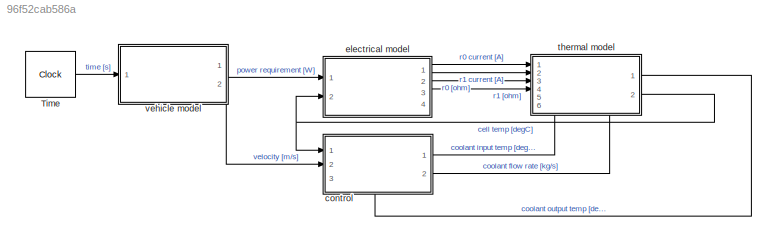
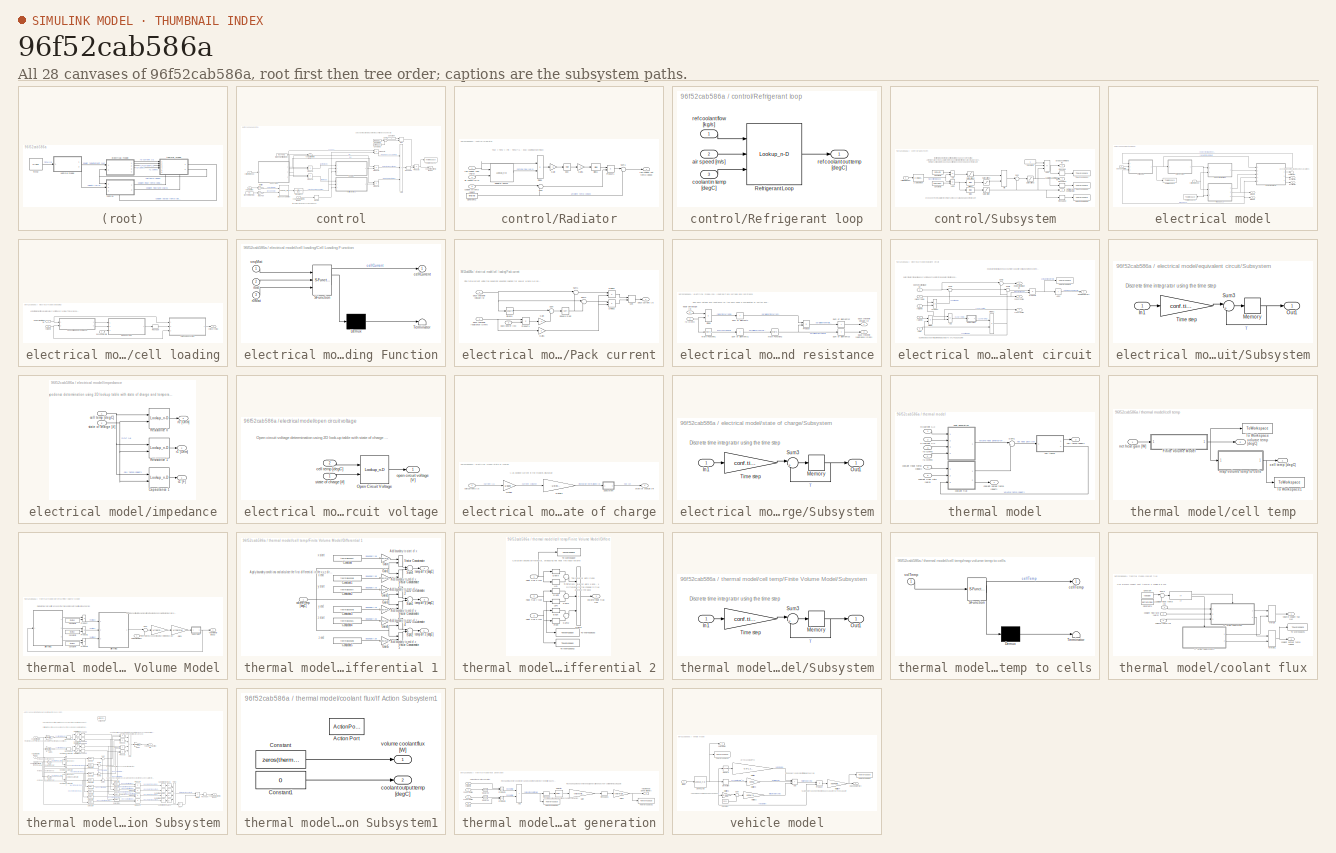
[diagram: thumbnail index - all 28 canvases of the model, root first then tree order]
MODEL slx_96f52cab586a
KIND model
CONFIG AbsTol = auto
CONFIG EnableMultiTasking = off
CONFIG FixedStep = 1
CONFIG InitFcn = full_model_init
CONFIG MaxStep = auto
CONFIG MinStep = auto
CONFIG RelTol = 1e-3
CONFIG SampleTimeConstraint = Unconstrained
CONFIG SolverName = VariableStepAuto
CONFIG StartTime = 0.0
CONFIG StopTime = stopTime
BLOCK [Clock] Time
  DisplayTime = on
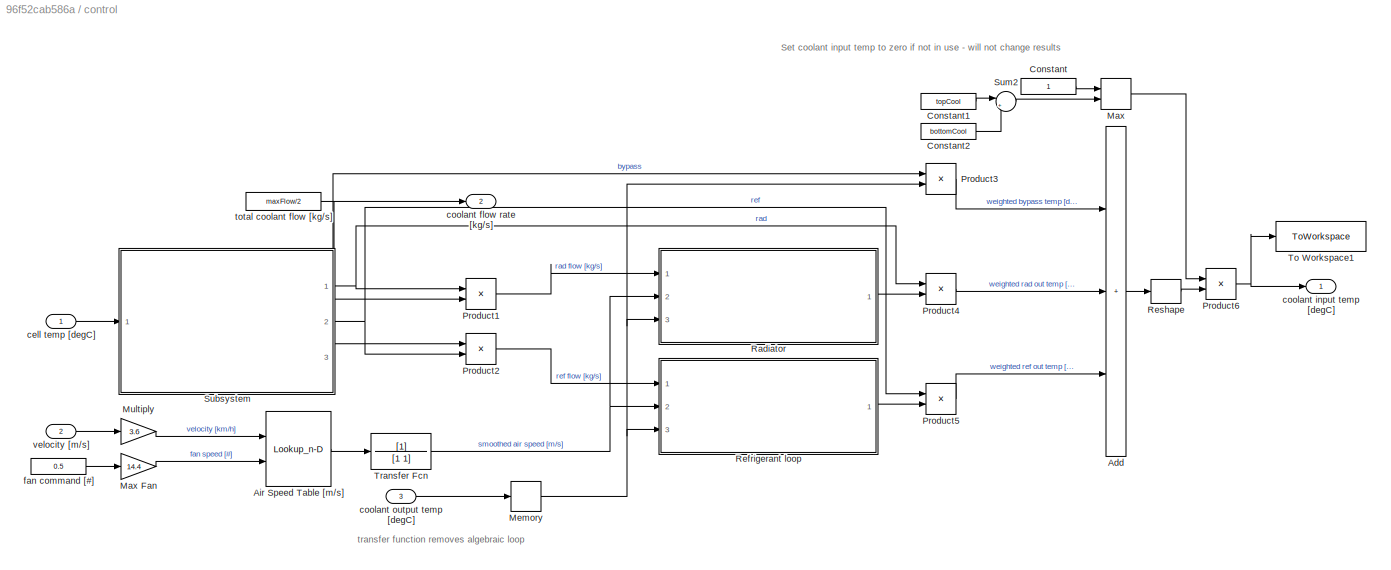
BLOCK [SubSystem] control
  PortSchema = {"entries":[{"content":{"sides":[{"content":{"connectorIds":["In1","In2"]},"type":"ConnectorPlacement.EquallySpacedRectSide","uuid":"22f80eaa-bb46-4281-9ec1-3970c1bac2a3"},{"content":{"connectorIds":["Out1","Out2"],"side":"RIGHT"},"type":"ConnectorPlacement.EquallySpacedRectSide","uuid":"e76f71c5-d41f-442d-b655-b3bc32395443"},{"content":{"connectorIds":[],"side":"TOP"},"type":"ConnectorPlacement.E...<+402ch>
  Ports = [3, 2]
  RequestExecContextInheritance = off
  ShowPortLabels = SignalName
BLOCK [Sum] control/Add
  IconShape = rectangular
  Inputs = +++
  Ports = [3, 1]
BLOCK [Lookup_n-D] control/Air Speed Table [m//s]
  BeginIndexSearchUsingPreviousIndexResult = on
  BreakpointsForDimension1 = [0 40 90 110 150 180 198]
  BreakpointsForDimension2 = [0 14.4]
  IndexSearchMethod = Linear search
  InputPortMap = u0,u1
  InternalRulePriority = Speed
  Ports = [2, 1]
  RndMeth = Simplest
  Table = [0 0.8 2.2 2.7 3.6 4.1 4.6; 1.5 2.3 3.2 3.5 4.3 4.8 5.1]'
BLOCK [Constant] control/Constant
BLOCK [Constant] control/Constant1
  Value = topCool
BLOCK [Constant] control/Constant2
  Value = bottomCool
BLOCK [MinMax] control/Max
  Inputs = 2
  Ports = [2, 1]
BLOCK [Gain] control/Max Fan
  Gain = 14.4
BLOCK [Memory] control/Memory
  InitialCondition = tempAmb + conf.bound.initBias
BLOCK [Gain] control/Multiply
  Gain = 3.6
BLOCK [Product] control/Product1
  Ports = [2, 1]
BLOCK [Product] control/Product2
  Ports = [2, 1]
BLOCK [Product] control/Product3
  Ports = [2, 1]
BLOCK [Product] control/Product4
  Ports = [2, 1]
BLOCK [Product] control/Product5
  Ports = [2, 1]
BLOCK [Product] control/Product6
  Ports = [2, 1]
BLOCK [SubSystem] control/Radiator
  Ports = [3, 1]
  RequestExecContextInheritance = off
BLOCK [Bias] control/Radiator/Bias1
  Bias = 1
  SaturateOnIntegerOverflow = off
BLOCK [Constant] control/Radiator/Constant2
  Value = tempAmb
BLOCK [Product] control/Radiator/Divide
  Inputs = */
  Ports = [2, 1]
BLOCK [Math] control/Radiator/Exp
  Ports = [1, 1]
BLOCK [Gain] control/Radiator/Gain
  Gain = -1
BLOCK [Gain] control/Radiator/Gain1
  Gain = -1
BLOCK [Product] control/Radiator/Product1
  Ports = [2, 1]
BLOCK [Lookup_n-D] control/Radiator/Radiator lookup
  BreakpointsForDimension1 = radCoolFlowBreakPoints
  BreakpointsForDimension2 = radAirVelBreakPoints
  BreakpointsForDimension3 = refCoolInTempBreakPoints
  InputPortMap = u0,u1
  InternalRulePriority = Speed
  Ports = [2, 1]
  RndMeth = Simplest
  Table = radNomFlowMatrix
BLOCK [Sum] control/Radiator/Sum
  Inputs = |+-
  Ports = [2, 1]
BLOCK [Sum] control/Radiator/Sum1
  Inputs = |++
  Ports = [2, 1]
BLOCK [Inport] control/Radiator/air speed [m//s]
  Port = 2
BLOCK [Inport] control/Radiator/coolant in temp [degC]
  Port = 3
BLOCK [Inport] control/Radiator/rad coolant flow [kg//s]
BLOCK [Outport] control/Radiator/rad coolant out temp [degC]
BLOCK [SubSystem] control/Refrigerant loop
  Ports = [3, 1]
  RequestExecContextInheritance = off
BLOCK [Lookup_n-D] control/Refrigerant loop/Refrigerant Loop
  BreakpointsForDimension1 = refCoolFlowBreakPoints
  BreakpointsForDimension2 = refAirVelBreakPoints
  BreakpointsForDimension3 = refCoolInTempBreakPoints
  InputPortMap = u0,u1,u2
  InternalRulePriority = Speed
  NumberOfTableDimensions = 3
  Ports = [3, 1]
  RndMeth = Simplest
  Table = refTempOutMatrix
BLOCK [Inport] control/Refrigerant loop/air speed [m//s]
  Port = 2
BLOCK [Inport] control/Refrigerant loop/coolant in temp [degC]
  Port = 3
BLOCK [Inport] control/Refrigerant loop/ref coolant flow [kg//s]
BLOCK [Outport] control/Refrigerant loop/ref coolant out temp [degC]
BLOCK [Reshape] control/Reshape
  OutputDimensionality = Customize
  OutputDimensions = 1
  Ports = [1, 1]
BLOCK [SubSystem] control/Subsystem
  PortSchema = {"entries":[{"content":{"sides":[{"content":{"connectorIds":["In1"]},"type":"ConnectorPlacement.EquallySpacedRectSide","uuid":"39caf9d2-37e9-4ddb-8f89-28cdec2ac0f1"},{"content":{"connectorIds":["Out1","Out2"],"side":"RIGHT"},"type":"ConnectorPlacement.EquallySpacedRectSide","uuid":"3cbc02da-b039-4e1d-b42e-efc08ec78021"},{"content":{"connectorIds":["Out3"],"side":"TOP"},"type":"ConnectorPlacement.E...<+253ch>
  Ports = [1, 3]
  RequestExecContextInheritance = off
BLOCK [Reference] control/Subsystem/2-D Maximum  REF=visionstatistics/2-D Maximum
  Ports = [1, 1]
  SourceBlock = visionstatistics/2-D Maximum
  SourceProductBaseCode = VP
  SourceType = 2-D Maximum
  UserDataPersistent = on
BLOCK [Sum] control/Subsystem/Add
  IconShape = rectangular
  Inputs = -+
  Ports = [2, 1]
BLOCK [Sum] control/Subsystem/Add1
  IconShape = rectangular
  Inputs = +-
  Ports = [2, 1]
BLOCK [Sum] control/Subsystem/Add2
  IconShape = rectangular
  Inputs = +--
  Ports = [3, 1]
BLOCK [Bias] control/Subsystem/Bias
  Bias = -4.5
  SaturateOnIntegerOverflow = off
BLOCK [Bias] control/Subsystem/Bias1
  Bias = +0.5
  SaturateOnIntegerOverflow = off
BLOCK [Constant] control/Subsystem/Constant1
BLOCK [Constant] control/Subsystem/Constant2
  Value = tempAmb
BLOCK [Constant] control/Subsystem/Constant3
  Value = tempTarget
BLOCK [MinMax] control/Subsystem/Min
  Inputs = 2
  Ports = [2, 1]
BLOCK [Reshape] control/Subsystem/Reshape
  Ports = [1, 1]
BLOCK [Reshape] control/Subsystem/Reshape1
  Ports = [1, 1]
BLOCK [Reshape] control/Subsystem/Reshape2
  Ports = [1, 1]
BLOCK [Saturate] control/Subsystem/Saturation
  LowerLimit = 0
  UpperLimit = 1
BLOCK [Saturate] control/Subsystem/Saturation1
  LowerLimit = 0
  UpperLimit = 1
BLOCK [Saturate] control/Subsystem/Saturation2
  LowerLimit = 0
  UpperLimit = 1
BLOCK [Saturate] control/Subsystem/Saturation3
  LowerLimit = 0
  UpperLimit = 1
BLOCK [Sum] control/Subsystem/Sum
  Inputs = |+-
  Ports = [2, 1]
BLOCK [ToWorkspace] control/Subsystem/To Workspace1
  FixptAsFi = on
  MaxDataPoints = inf
  Ports = [1]
  SampleTime = conf.time.sample
  SaveFormat = Timeseries
  VariableName = bypassCmd
BLOCK [ToWorkspace] control/Subsystem/To Workspace2
  FixptAsFi = on
  MaxDataPoints = inf
  Ports = [1]
  SampleTime = conf.time.sample
  SaveFormat = Timeseries
  VariableName = radCmd
BLOCK [ToWorkspace] control/Subsystem/To Workspace3
  FixptAsFi = on
  MaxDataPoints = inf
  Ports = [1]
  SampleTime = conf.time.sample
  SaveFormat = Timeseries
  VariableName = refCmd
BLOCK [Outport] control/Subsystem/bypass command [#]
  Port = 3
BLOCK [Inport] control/Subsystem/cell temp [degC]
BLOCK [Outport] control/Subsystem/radiator command [#]
BLOCK [Outport] control/Subsystem/refrigerant command [#]
  Port = 2
BLOCK [Sum] control/Sum2
  Inputs = |++
  Ports = [2, 1]
BLOCK [ToWorkspace] control/To Workspace1
  FixptAsFi = on
  MaxDataPoints = inf
  Ports = [1]
  SampleTime = conf.time.sample
  SaveFormat = Timeseries
  VariableName = coolInTemp
BLOCK [TransferFcn] control/Transfer Fcn
  Denominator = [1 1]
BLOCK [Inport] control/cell temp [degC]
BLOCK [Outport] control/coolant flow rate [kg//s]
  Port = 2
BLOCK [Outport] control/coolant input temp [degC]
BLOCK [Inport] control/coolant output temp [degC]
  Port = 3
BLOCK [Constant] control/fan command [#]
  Value = 0.5
BLOCK [Constant] control/total coolant flow [kg//s]
  Value = maxFlow/2
BLOCK [Inport] control/velocity [m//s]
  Port = 2
BLOCK [SubSystem] electrical model
  Ports = [2, 4]
  RequestExecContextInheritance = off
BLOCK [Terminator] electrical model/Terminator
BLOCK [ToWorkspace] electrical model/To Workspace
  FixptAsFi = on
  MaxDataPoints = inf
  Ports = [1]
  SampleTime = conf.time.sample
  SaveFormat = Timeseries
  VariableName = cellCurrent
BLOCK [ToWorkspace] electrical model/To Workspace2
  FixptAsFi = on
  MaxDataPoints = inf
  Ports = [1]
  SampleTime = conf.time.sample
  SaveFormat = Timeseries
  VariableName = cellSOC
BLOCK [SubSystem] electrical model/cell loading
  Ports = [3, 1]
  RequestExecContextInheritance = off
BLOCK [SubSystem] electrical model/cell loading/Cell Loading Function
  ErrorFcn = Stateflow.Translate.translate
  PermitHierarchicalResolution = ExplicitOnly
  Ports = [3, 1]
  RequestExecContextInheritance = off
  SFBlockType = MATLAB Function
  TreatAsAtomicUnit = on
BLOCK [Demux] electrical model/cell loading/Cell Loading Function/ Demux 
  Outputs = 1
  Ports = [1, 1]
BLOCK [S-Function] electrical model/cell loading/Cell Loading Function/ SFunction 
  EnableBusSupport = on
  FunctionName = sf_sfun
  Parameters = cellsP,cellsS,elecLoadDenomInds,elecLoadTerm12Inds,elecLoadTerm1Inds,elecLoadTerm2Inds,elecLoadTerm3Inds
  PortCounts = [3 2]
  Ports = [3, 2]
  SFcnIsStateOwnerBlock = off
  SFunctionDeploymentMode = off
  Tag = Stateflow S-Function 1
BLOCK [Terminator] electrical model/cell loading/Cell Loading Function/ Terminator 
BLOCK [Outport] electrical model/cell loading/Cell Loading Function/cellCurrent
BLOCK [Inport] electrical model/cell loading/Cell Loading Function/ibat
  Port = 2
BLOCK [Inport] electrical model/cell loading/Cell Loading Function/r0Mat
  Port = 3
BLOCK [Inport] electrical model/cell loading/Cell Loading Function/veqMat
BLOCK [SubSystem] electrical model/cell loading/Pack current
  Ports = [3, 1]
  RequestExecContextInheritance = off
BLOCK [Product] electrical model/cell loading/Pack current/Divide1
  Inputs = */
  Ports = [2, 1]
BLOCK [Product] electrical model/cell loading/Pack current/Divide2
  Inputs = */
  Ports = [2, 1]
BLOCK [Gain] electrical model/cell loading/Pack current/Gain
  Gain = -4
BLOCK [Gain] electrical model/cell loading/Pack current/Gain1
  Gain = 2
BLOCK [MinMax] electrical model/cell loading/Pack current/Min
  Inputs = 2
  Ports = [2, 1]
BLOCK [Product] electrical model/cell loading/Pack current/Product1
  Ports = [2, 1]
BLOCK [Math] electrical model/cell loading/Pack current/Square
  Operator = square
  Ports = [1, 1]
BLOCK [Sqrt] electrical model/cell loading/Pack current/Square Root
BLOCK [Sum] electrical model/cell loading/Pack current/Sum
  Inputs = |++
  Ports = [2, 1]
BLOCK [Sum] electrical model/cell loading/Pack current/Sum1
  Inputs = |++
  Ports = [2, 1]
BLOCK [Sum] electrical model/cell loading/Pack current/Sum2
  Inputs = |+-
  Ports = [2, 1]
BLOCK [Outport] electrical model/cell loading/Pack current/pack current [A]
BLOCK [Inport] electrical model/cell loading/Pack current/pack power [W]
  Port = 3
BLOCK [Inport] electrical model/cell loading/Pack current/pack thevenin resistance [Ohm]
  Port = 2
BLOCK [Inport] electrical model/cell loading/Pack current/pack thevenin voltage [V]
BLOCK [SubSystem] electrical model/cell loading/Pack voltage and resistance
  Ports = [2, 2]
  RequestExecContextInheritance = off
BLOCK [Product] electrical model/cell loading/Pack voltage and resistance/Divide
  Inputs = */
  Ports = [2, 1]
BLOCK [Math] electrical model/cell loading/Pack voltage and resistance/Math Function1
  Operator = reciprocal
  Ports = [1, 1]
BLOCK [Math] electrical model/cell loading/Pack voltage and resistance/Math Function2
  Operator = reciprocal
  Ports = [1, 1]
BLOCK [Product] electrical model/cell loading/Pack voltage and resistance/Product
  Ports = [2, 1]
BLOCK [Sum] electrical model/cell loading/Pack voltage and resistance/Sum of Elements
  CollapseDim = 2
  CollapseMode = Specified dimension
  IconShape = rectangular
  Inputs = +
  Ports = [1, 1]
BLOCK [Sum] electrical model/cell loading/Pack voltage and resistance/Sum of Elements1
  CollapseDim = 2
  CollapseMode = Specified dimension
  IconShape = rectangular
  Inputs = +
  Ports = [1, 1]
BLOCK [Sum] electrical model/cell loading/Pack voltage and resistance/Sum of Elements2
  CollapseMode = Specified dimension
  IconShape = rectangular
  Inputs = +
  Ports = [1, 1]
BLOCK [Sum] electrical model/cell loading/Pack voltage and resistance/Sum of Elements3
  CollapseMode = Specified dimension
  IconShape = rectangular
  Inputs = +
  Ports = [1, 1]
BLOCK [Inport] electrical model/cell loading/Pack voltage and resistance/equiv cell voltage [V]
BLOCK [Outport] electrical model/cell loading/Pack voltage and resistance/pack thevenin resistance [Ohm]
  Port = 2
BLOCK [Outport] electrical model/cell loading/Pack voltage and resistance/pack thevenin voltage [V]
BLOCK [Inport] electrical model/cell loading/Pack voltage and resistance/r0 [Ohm]
  Port = 2
BLOCK [Reshape] electrical model/cell loading/Reshape
  OutputDimensionality = Customize
  OutputDimensions = 1
  Ports = [1, 1]
BLOCK [Outport] electrical model/cell loading/cell current [A]
BLOCK [Inport] electrical model/cell loading/equiv cell voltage [V]
BLOCK [Inport] electrical model/cell loading/pack power [W]
  Port = 2
BLOCK [Inport] electrical model/cell loading/r0 [Ohm]
  Port = 3
BLOCK [Inport] electrical model/cell temp [degC]
  Port = 2
BLOCK [SubSystem] electrical model/equivalent circuit
  Ports = [5, 4]
  RequestExecContextInheritance = off
BLOCK [Sum] electrical model/equivalent circuit/Add
  IconShape = rectangular
  Inputs = +-
  Ports = [2, 1]
BLOCK [Sum] electrical model/equivalent circuit/Add1
  IconShape = rectangular
  Inputs = +
  Ports = [1, 1]
BLOCK [Product] electrical model/equivalent circuit/Divide
  Inputs = /*
  Ports = [2, 1]
BLOCK [Product] electrical model/equivalent circuit/Divide1
  Inputs = */
  Ports = [2, 1]
BLOCK [Product] electrical model/equivalent circuit/Product
  Ports = [2, 1]
BLOCK [Product] electrical model/equivalent circuit/Product1
  Ports = [2, 1]
BLOCK [SubSystem] electrical model/equivalent circuit/Subsystem
  Ports = [1, 1]
  RequestExecContextInheritance = off
BLOCK [Inport] electrical model/equivalent circuit/Subsystem/In1
BLOCK [Memory] electrical model/equivalent circuit/Subsystem/Memory
BLOCK [Outport] electrical model/equivalent circuit/Subsystem/Out1
BLOCK [Sum] electrical model/equivalent circuit/Subsystem/Sum3
  Inputs = |++
  Ports = [2, 1]
BLOCK [Gain] electrical model/equivalent circuit/Subsystem/Time step
  Gain = conf.time.step
BLOCK [Sum] electrical model/equivalent circuit/Sum1
  Inputs = |+-
  Ports = [2, 1]
BLOCK [Sum] electrical model/equivalent circuit/Sum2
  Inputs = |+-
  Ports = [2, 1]
BLOCK [Sum] electrical model/equivalent circuit/Sum6
  Inputs = |+-
  Ports = [2, 1]
BLOCK [ToWorkspace] electrical model/equivalent circuit/To Workspace
  FixptAsFi = on
  MaxDataPoints = inf
  Ports = [1]
  SampleTime = conf.time.sample
  SaveFormat = Timeseries
  VariableName = cellPower
BLOCK [Outport] electrical model/equivalent circuit/actual power [W]
  Port = 2
BLOCK [Inport] electrical model/equivalent circuit/c1 [F]
  Port = 3
BLOCK [Inport] electrical model/equivalent circuit/cell current [A]
BLOCK [Outport] electrical model/equivalent circuit/equiv cell voltage [V]
BLOCK [Inport] electrical model/equivalent circuit/open circuit voltage [V]
  Port = 2
BLOCK [Inport] electrical model/equivalent circuit/r0 [Ohm]
  Port = 5
BLOCK [Outport] electrical model/equivalent circuit/r0 current [A]
  Port = 3
BLOCK [Inport] electrical model/equivalent circuit/r1 [Ohm]
  Port = 4
BLOCK [Outport] electrical model/equivalent circuit/r1 current [A]
  Port = 4
BLOCK [SubSystem] electrical model/impedance
  Ports = [2, 3]
  RequestExecContextInheritance = off
BLOCK [Lookup_n-D] electrical model/impedance/Capacitance 1
  BreakpointsForDimension1 = elecTempBreak
  BreakpointsForDimension2 = elecSOCBreak
  InputPortMap = u0,u1
  InternalRulePriority = Speed
  Ports = [2, 1]
  RndMeth = Simplest
  Table = elecC1
BLOCK [Lookup_n-D] electrical model/impedance/Resistance 0
  BreakpointsForDimension1 = elecTempBreak
  BreakpointsForDimension2 = elecSOCBreak
  InputPortMap = u0,u1
  InternalRulePriority = Speed
  Ports = [2, 1]
  RndMeth = Simplest
  Table = elecR0
BLOCK [Lookup_n-D] electrical model/impedance/Resistance 1
  BreakpointsForDimension1 = elecTempBreak
  BreakpointsForDimension2 = elecSOCBreak
  InputPortMap = u0,u1
  InternalRulePriority = Speed
  Ports = [2, 1]
  RndMeth = Simplest
  Table = elecR1
BLOCK [Outport] electrical model/impedance/c1 [F]
BLOCK [Inport] electrical model/impedance/cell temp [degC]
BLOCK [Outport] electrical model/impedance/r0 [Ohm]
  Port = 3
BLOCK [Outport] electrical model/impedance/r1 [Ohm]
  Port = 2
BLOCK [Inport] electrical model/impedance/state of charge [#]
  Port = 2
BLOCK [SubSystem] electrical model/open circuit voltage
  Ports = [2, 1]
  RequestExecContextInheritance = off
BLOCK [Lookup_n-D] electrical model/open circuit voltage/Open Circuit Voltage
  BreakpointsForDimension1 = elecTempBreak
  BreakpointsForDimension2 = elecSOCBreak
  InputPortMap = u0,u1
  InternalRulePriority = Speed
  Ports = [2, 1]
  RndMeth = Simplest
  Table = elecOCV
BLOCK [Inport] electrical model/open circuit voltage/cell temp [degC]
  Port = 2
BLOCK [Outport] electrical model/open circuit voltage/open circuit voltage [V]
BLOCK [Inport] electrical model/open circuit voltage/state of charge [#]
BLOCK [Inport] electrical model/pack power [W]
BLOCK [Outport] electrical model/r0 [Ohm]
  Port = 3
BLOCK [Outport] electrical model/r0 current [A]
BLOCK [Outport] electrical model/r1 [Ohm]
  Port = 4
BLOCK [Outport] electrical model/r1 current [A]
  Port = 2
BLOCK [SubSystem] electrical model/state of charge
  Ports = [1, 1]
  RequestExecContextInheritance = off
BLOCK [Gain] electrical model/state of charge/Multiply
  Gain = 1/3600
BLOCK [Gain] electrical model/state of charge/Multiply1
  Gain = -1/elecCellCap
BLOCK [SubSystem] electrical model/state of charge/Subsystem
  Ports = [1, 1]
  RequestExecContextInheritance = off
BLOCK [Inport] electrical model/state of charge/Subsystem/In1
BLOCK [Memory] electrical model/state of charge/Subsystem/Memory
  InitialCondition = elecInitSOC
BLOCK [Outport] electrical model/state of charge/Subsystem/Out1
BLOCK [Sum] electrical model/state of charge/Subsystem/Sum3
  Inputs = |++
  Ports = [2, 1]
BLOCK [Gain] electrical model/state of charge/Subsystem/Time step
  Gain = conf.time.step
BLOCK [Inport] electrical model/state of charge/cell currents [A]
BLOCK [Outport] electrical model/state of charge/state of charge [#]
BLOCK [SubSystem] thermal model
  PortSchema = {"entries":[{"content":{"sides":[{"content":{"connectorIds":["In1","In2","In3","In4"]},"type":"ConnectorPlacement.EquallySpacedRectSide","uuid":"85abd361-fdf9-4e50-9692-c6cfc682c3ac"},{"content":{"connectorIds":["Out1","Out2"],"side":"RIGHT"},"type":"ConnectorPlacement.EquallySpacedRectSide","uuid":"50be5dc9-6285-4d3d-a0f1-610cf70c20d6"},{"content":{"connectorIds":[],"side":"TOP"},"type":"Connecto...<+420ch>
  Ports = [6, 2]
  RequestExecContextInheritance = off
BLOCK [Sum] thermal model/Sum1
  Inputs = |++
  Ports = [2, 1]
BLOCK [SubSystem] thermal model/cell temp
  Ports = [1, 2]
  RequestExecContextInheritance = off
BLOCK [Outport] thermal model/cell temp [degC]
  Port = 2
BLOCK [SubSystem] thermal model/cell temp/Finite Volume Model
  Ports = [1, 1]
  RequestExecContextInheritance = off
BLOCK [Constant] thermal model/cell temp/Finite Volume Model/Constant2
  Value = thermKx
BLOCK [Constant] thermal model/cell temp/Finite Volume Model/Constant3
  Value = thermKy
BLOCK [Constant] thermal model/cell temp/Finite Volume Model/Constant4
  Value = thermKz
BLOCK [SubSystem] thermal model/cell temp/Finite Volume Model/Differential 1
  Ports = [1, 3]
  RequestExecContextInheritance = off
BLOCK [Constant] thermal model/cell temp/Finite Volume Model/Differential 1/Constant
  Value = thermBoundXA
BLOCK [Constant] thermal model/cell temp/Finite Volume Model/Differential 1/Constant1
  Value = thermBoundXB
BLOCK [Constant] thermal model/cell temp/Finite Volume Model/Differential 1/Constant2
  Value = thermBoundYA
BLOCK [Constant] thermal model/cell temp/Finite Volume Model/Differential 1/Constant3
  Value = thermBoundYB
BLOCK [Constant] thermal model/cell temp/Finite Volume Model/Differential 1/Constant4
  Value = thermBoundZA
BLOCK [Constant] thermal model/cell temp/Finite Volume Model/Differential 1/Constant5
  Value = thermBoundZB
BLOCK [Gain] thermal model/cell temp/Finite Volume Model/Differential 1/Gain
  Gain = ones(max(1,thermDims.*(1:3~=1)))
BLOCK [Gain] thermal model/cell temp/Finite Volume Model/Differential 1/Gain1
  Gain = ones(max(1,thermDims.*(1:3~=1)))
BLOCK [Gain] thermal model/cell temp/Finite Volume Model/Differential 1/Gain2
  Gain = ones(max(1,thermDims.*(1:3~=2)))
BLOCK [Gain] thermal model/cell temp/Finite Volume Model/Differential 1/Gain3
  Gain = ones(max(1,thermDims.*(1:3~=2)))
BLOCK [Gain] thermal model/cell temp/Finite Volume Model/Differential 1/Gain4
  Gain = ones(max(1,thermDims.*(1:3~=3)))
BLOCK [Gain] thermal model/cell temp/Finite Volume Model/Differential 1/Gain5
  Gain = ones(max(1,thermDims.*(1:3~=3)))
BLOCK [Sum] thermal model/cell temp/Finite Volume Model/Differential 1/Sum1
  Inputs = -+
  Ports = [2, 1]
BLOCK [Sum] thermal model/cell temp/Finite Volume Model/Differential 1/Sum2
  Inputs = -+
  Ports = [2, 1]
BLOCK [Sum] thermal model/cell temp/Finite Volume Model/Differential 1/Sum4
  Inputs = -+
  Ports = [2, 1]
BLOCK [Concatenate] thermal model/cell temp/Finite Volume Model/Differential 1/Vector Concatenate
  Mode = Multidimensional array
  Ports = [2, 1]
BLOCK [Concatenate] thermal model/cell temp/Finite Volume Model/Differential 1/Vector Concatenate1
  Mode = Multidimensional array
  Ports = [2, 1]
BLOCK [Concatenate] thermal model/cell temp/Finite Volume Model/Differential 1/Vector Concatenate2
  ConcatenateDimension = 2
  Mode = Multidimensional array
  Ports = [2, 1]
BLOCK [Concatenate] thermal model/cell temp/Finite Volume Model/Differential 1/Vector Concatenate3
  ConcatenateDimension = 2
  Mode = Multidimensional array
  Ports = [2, 1]
BLOCK [Concatenate] thermal model/cell temp/Finite Volume Model/Differential 1/Vector Concatenate4
  ConcatenateDimension = 3
  Mode = Multidimensional array
  Ports = [2, 1]
BLOCK [Concatenate] thermal model/cell temp/Finite Volume Model/Differential 1/Vector Concatenate5
  ConcatenateDimension = 3
  Mode = Multidimensional array
  Ports = [2, 1]
BLOCK [Outport] thermal model/cell temp/Finite Volume Model/Differential 1/temp dif x [degC]
BLOCK [Outport] thermal model/cell temp/Finite Volume Model/Differential 1/temp dif y [degC]
  Port = 2
BLOCK [Outport] thermal model/cell temp/Finite Volume Model/Differential 1/temp dif z [degC]
  Port = 3
BLOCK [Inport] thermal model/cell temp/Finite Volume Model/Differential 1/volume temp [degC]
BLOCK [SubSystem] thermal model/cell temp/Finite Volume Model/Differential 2
  Ports = [3, 1]
  RequestExecContextInheritance = off
BLOCK [Selector] thermal model/cell temp/Finite Volume Model/Differential 2/Back
  IndexMode = Zero-based
  IndexOptions = Select all,Select all,Index vector (dialog)
  Indices = [1 1:(n-1)],[2:n n],1:thermDims(3)
  InputPortWidth = 3
  NumberOfDimensions = 3
  OutputSizes = 1,1,1
  Ports = [1, 1]
BLOCK [Selector] thermal model/cell temp/Finite Volume Model/Differential 2/Down
  IndexMode = Zero-based
  IndexOptions = Index vector (dialog),Select all,Select all
  Indices = 1:thermDims(1),1,1
  InputPortWidth = 3
  NumberOfDimensions = 3
  OutputSizes = 1,1,1
  Ports = [1, 1]
BLOCK [Selector] thermal model/cell temp/Finite Volume Model/Differential 2/Front
  IndexOptions = Select all,Select all,Index vector (dialog)
  Indices = [1 1:(n-1)],[1 1:(n-1)],1:thermDims(3)
  InputPortWidth = 3
  NumberOfDimensions = 3
  OutputSizes = 1,1,1
  Ports = [1, 1]
BLOCK [Selector] thermal model/cell temp/Finite Volume Model/Differential 2/Left
  IndexOptions = Select all,Index vector (dialog),Select all
  Indices = [1 1:(n-1)],1:thermDims(2),1
  InputPortWidth = 3
  NumberOfDimensions = 3
  OutputSizes = 1,1,1
  Ports = [1, 1]
BLOCK [Selector] thermal model/cell temp/Finite Volume Model/Differential 2/Right
  IndexMode = Zero-based
  IndexOptions = Select all,Index vector (dialog),Select all
  Indices = [1 1:(n-1)],1:thermDims(2),1
  InputPortWidth = 3
  NumberOfDimensions = 3
  OutputSizes = 1,1,1
  Ports = [1, 1]
BLOCK [Sum] thermal model/cell temp/Finite Volume Model/Differential 2/Sum
  Inputs = -+
  Ports = [2, 1]
BLOCK [Sum] thermal model/cell temp/Finite Volume Model/Differential 2/Sum1
  Inputs = -+
  Ports = [2, 1]
BLOCK [Sum] thermal model/cell temp/Finite Volume Model/Differential 2/Sum2
  Inputs = -+
  Ports = [2, 1]
BLOCK [Sum] thermal model/cell temp/Finite Volume Model/Differential 2/Sum3
  IconShape = rectangular
  Inputs = +++
  Ports = [3, 1]
BLOCK [ToWorkspace] thermal model/cell temp/Finite Volume Model/Differential 2/To Workspace
  FixptAsFi = on
  MaxDataPoints = inf
  Ports = [1]
  SampleTime = conf.time.sample
  SaveFormat = Timeseries
  VariableName = heatFluxX
BLOCK [ToWorkspace] thermal model/cell temp/Finite Volume Model/Differential 2/To Workspace2
  FixptAsFi = on
  MaxDataPoints = inf
  Ports = [1]
  SampleTime = conf.time.sample
  SaveFormat = Timeseries
  VariableName = heatFluxZ
BLOCK [ToWorkspace] thermal model/cell temp/Finite Volume Model/Differential 2/To Workspace3
  FixptAsFi = on
  MaxDataPoints = inf
  Ports = [1]
  SampleTime = conf.time.sample
  SaveFormat = Timeseries
  VariableName = heatFluxY
BLOCK [Selector] thermal model/cell temp/Finite Volume Model/Differential 2/Up
  IndexOptions = Index vector (dialog),Select all,Select all
  Indices = 1:thermDims(1),1,1
  InputPortWidth = 3
  NumberOfDimensions = 3
  OutputSizes = 1,1,1
  Ports = [1, 1]
BLOCK [Inport] thermal model/cell temp/Finite Volume Model/Differential 2/heat flux x [W]
BLOCK [Inport] thermal model/cell temp/Finite Volume Model/Differential 2/heat flux y [W]
  Port = 2
BLOCK [Inport] thermal model/cell temp/Finite Volume Model/Differential 2/heat flux z [W]
  Port = 3
BLOCK [Outport] thermal model/cell temp/Finite Volume Model/Differential 2/volume heat flux [W]
BLOCK [Gain] thermal model/cell temp/Finite Volume Model/Gain
  Gain = 1/thermCp
BLOCK [Gain] thermal model/cell temp/Finite Volume Model/Gain1
  Gain = 1/thermM
BLOCK [Product] thermal model/cell temp/Finite Volume Model/Product
  Ports = [2, 1]
BLOCK [Product] thermal model/cell temp/Finite Volume Model/Product1
  Ports = [2, 1]
BLOCK [Product] thermal model/cell temp/Finite Volume Model/Product2
  Ports = [2, 1]
BLOCK [SubSystem] thermal model/cell temp/Finite Volume Model/Subsystem
  Ports = [1, 1]
  RequestExecContextInheritance = off
BLOCK [Inport] thermal model/cell temp/Finite Volume Model/Subsystem/In1
BLOCK [Memory] thermal model/cell temp/Finite Volume Model/Subsystem/Memory
  InitialCondition = thermInitTemp
BLOCK [Outport] thermal model/cell temp/Finite Volume Model/Subsystem/Out1
BLOCK [Sum] thermal model/cell temp/Finite Volume Model/Subsystem/Sum3
  Inputs = |++
  Ports = [2, 1]
BLOCK [Gain] thermal model/cell temp/Finite Volume Model/Subsystem/Time step
  Gain = conf.time.step
BLOCK [Sum] thermal model/cell temp/Finite Volume Model/Sum
  Inputs = |-+
  Ports = [2, 1]
BLOCK [Inport] thermal model/cell temp/Finite Volume Model/net heat gain [W]
BLOCK [Outport] thermal model/cell temp/Finite Volume Model/volume temp [degC]
BLOCK [ToWorkspace] thermal model/cell temp/To Workspace
  FixptAsFi = on
  MaxDataPoints = inf
  Ports = [1]
  SampleTime = conf.time.sample
  SaveFormat = Timeseries
  VariableName = volTemp
BLOCK [ToWorkspace] thermal model/cell temp/To Workspace1
  FixptAsFi = on
  MaxDataPoints = inf
  Ports = [1]
  SampleTime = conf.time.sample
  SaveFormat = Timeseries
  VariableName = cellTemp
BLOCK [Outport] thermal model/cell temp/cell temp [degC]
BLOCK [SubSystem] thermal model/cell temp/map volume temp to cells
  ErrorFcn = Stateflow.Translate.translate
  PermitHierarchicalResolution = ExplicitOnly
  Ports = [1, 1]
  RequestExecContextInheritance = off
  SFBlockType = MATLAB Function
  TreatAsAtomicUnit = on
BLOCK [Demux] thermal model/cell temp/map volume temp to cells/ Demux 
  Outputs = 1
  Ports = [1, 1]
BLOCK [S-Function] thermal model/cell temp/map volume temp to cells/ SFunction 
  EnableBusSupport = on
  FunctionName = sf_sfun
  Parameters = cellsP,cellsS,thermTempInds
  PortCounts = [1 2]
  Ports = [1, 2]
  SFcnIsStateOwnerBlock = off
  SFunctionDeploymentMode = off
  Tag = Stateflow S-Function 4
BLOCK [Terminator] thermal model/cell temp/map volume temp to cells/ Terminator 
BLOCK [Outport] thermal model/cell temp/map volume temp to cells/cellTemp
BLOCK [Inport] thermal model/cell temp/map volume temp to cells/volTemp
BLOCK [Inport] thermal model/cell temp/net heat gain [W]
BLOCK [Outport] thermal model/cell temp/volume temp [degC]
  Port = 2
BLOCK [Inport] thermal model/coolant flow rate [kg//s]
  Port = 6
BLOCK [SubSystem] thermal model/coolant flux
  Ports = [3, 2]
  RequestExecContextInheritance = off
BLOCK [Constant] thermal model/coolant flux/Constant
  Value = topCool
BLOCK [Constant] thermal model/coolant flux/Constant1
  Value = bottomCool
BLOCK [If] thermal model/coolant flux/If
  Ports = [1, 2]
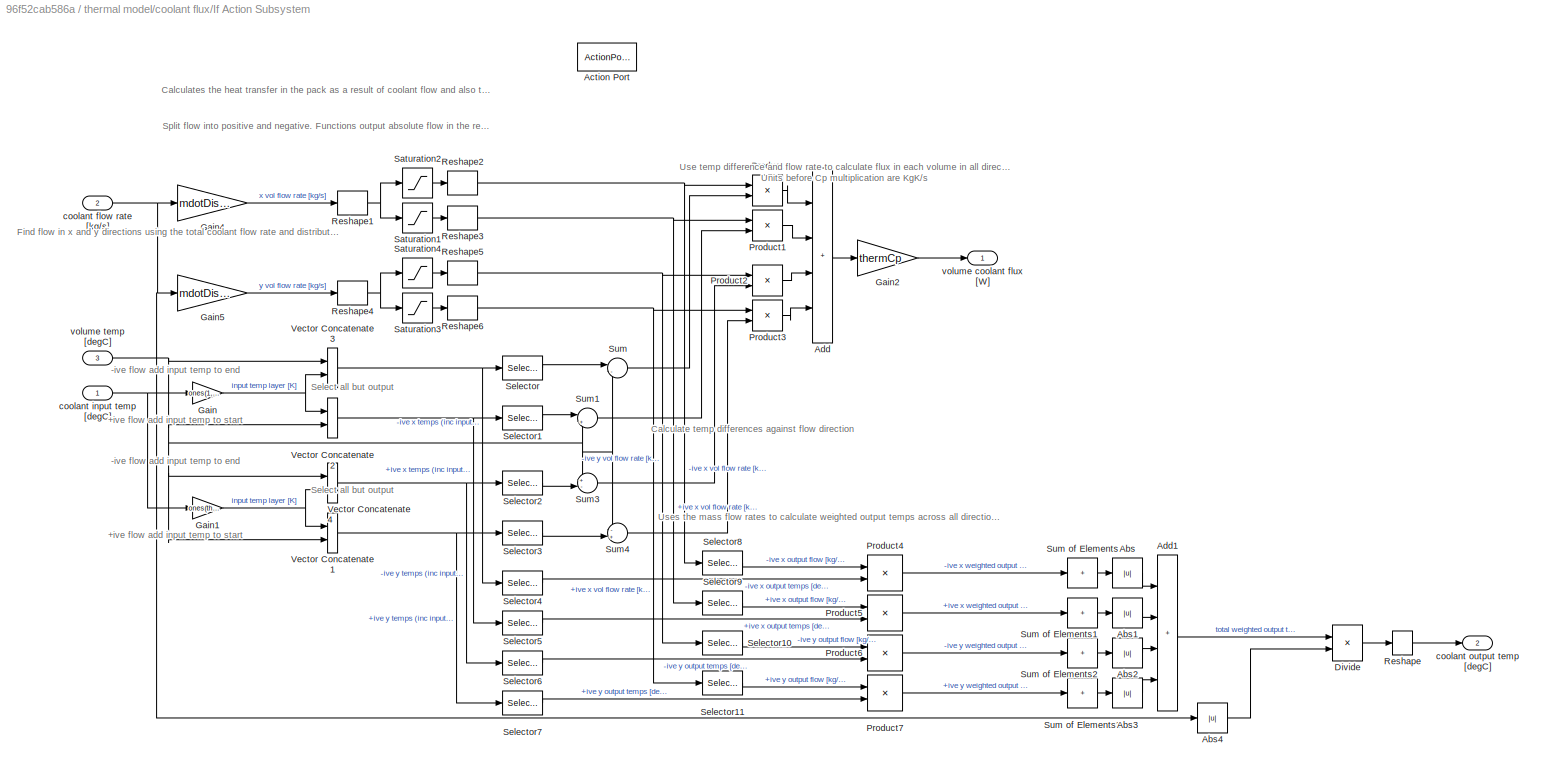
BLOCK [SubSystem] thermal model/coolant flux/If Action Subsystem
  Ports = [3, 2, 0, 0, 0, 0, 0, 1]
  RequestExecContextInheritance = off
  TreatAsAtomicUnit = on
BLOCK [Abs] thermal model/coolant flux/If Action Subsystem/Abs
  SaturateOnIntegerOverflow = off
BLOCK [Abs] thermal model/coolant flux/If Action Subsystem/Abs1
  SaturateOnIntegerOverflow = off
BLOCK [Abs] thermal model/coolant flux/If Action Subsystem/Abs2
  SaturateOnIntegerOverflow = off
BLOCK [Abs] thermal model/coolant flux/If Action Subsystem/Abs3
  SaturateOnIntegerOverflow = off
BLOCK [Abs] thermal model/coolant flux/If Action Subsystem/Abs4
  SaturateOnIntegerOverflow = off
BLOCK [ActionPort] thermal model/coolant flux/If Action Subsystem/Action Port
  ActionPortLabel = if(u1 > 0)
BLOCK [Sum] thermal model/coolant flux/If Action Subsystem/Add
  IconShape = rectangular
  Inputs = ++++
  Ports = [4, 1]
BLOCK [Sum] thermal model/coolant flux/If Action Subsystem/Add1
  IconShape = rectangular
  Inputs = ++++
  Ports = [4, 1]
BLOCK [Product] thermal model/coolant flux/If Action Subsystem/Divide
  Inputs = */
  Ports = [2, 1]
BLOCK [Gain] thermal model/coolant flux/If Action Subsystem/Gain
  Gain = ones(1,thermDims(2),thermDims(3))
BLOCK [Gain] thermal model/coolant flux/If Action Subsystem/Gain1
  Gain = ones(thermDims(1),1,thermDims(3))
BLOCK [Gain] thermal model/coolant flux/If Action Subsystem/Gain2
  Gain = thermCp
BLOCK [Gain] thermal model/coolant flux/If Action Subsystem/Gain4
  Gain = mdotDistX
BLOCK [Gain] thermal model/coolant flux/If Action Subsystem/Gain5
  Gain = mdotDistY
BLOCK [Product] thermal model/coolant flux/If Action Subsystem/Product
  Ports = [2, 1]
BLOCK [Product] thermal model/coolant flux/If Action Subsystem/Product1
  Ports = [2, 1]
BLOCK [Product] thermal model/coolant flux/If Action Subsystem/Product2
  Ports = [2, 1]
BLOCK [Product] thermal model/coolant flux/If Action Subsystem/Product3
  Ports = [2, 1]
BLOCK [Product] thermal model/coolant flux/If Action Subsystem/Product4
  Ports = [2, 1]
BLOCK [Product] thermal model/coolant flux/If Action Subsystem/Product5
  Ports = [2, 1]
BLOCK [Product] thermal model/coolant flux/If Action Subsystem/Product6
  Ports = [2, 1]
BLOCK [Product] thermal model/coolant flux/If Action Subsystem/Product7
  Ports = [2, 1]
BLOCK [Reshape] thermal model/coolant flux/If Action Subsystem/Reshape
  OutputDimensionality = Customize
  OutputDimensions = 1
  Ports = [1, 1]
BLOCK [Reshape] thermal model/coolant flux/If Action Subsystem/Reshape1
  OutputDimensionality = Customize
  OutputDimensions = thermDims(1)*thermDims(2)*thermDims(3)
  Ports = [1, 1]
BLOCK [Reshape] thermal model/coolant flux/If Action Subsystem/Reshape2
  OutputDimensionality = Customize
  OutputDimensions = thermDims
  Ports = [1, 1]
BLOCK [Reshape] thermal model/coolant flux/If Action Subsystem/Reshape3
  OutputDimensionality = Customize
  OutputDimensions = thermDims
  Ports = [1, 1]
BLOCK [Reshape] thermal model/coolant flux/If Action Subsystem/Reshape4
  OutputDimensionality = Customize
  OutputDimensions = thermDims(1)*thermDims(2)*thermDims(3)
  Ports = [1, 1]
BLOCK [Reshape] thermal model/coolant flux/If Action Subsystem/Reshape5
  OutputDimensionality = Customize
  OutputDimensions = thermDims
  Ports = [1, 1]
BLOCK [Reshape] thermal model/coolant flux/If Action Subsystem/Reshape6
  OutputDimensionality = Customize
  OutputDimensions = thermDims
  Ports = [1, 1]
BLOCK [Saturate] thermal model/coolant flux/If Action Subsystem/Saturation1
  LowerLimit = 0
  UpperLimit = inf
BLOCK [Saturate] thermal model/coolant flux/If Action Subsystem/Saturation2
  LowerLimit = -inf
  UpperLimit = 0
BLOCK [Saturate] thermal model/coolant flux/If Action Subsystem/Saturation3
  LowerLimit = 0
  UpperLimit = inf
BLOCK [Saturate] thermal model/coolant flux/If Action Subsystem/Saturation4
  LowerLimit = -inf
  UpperLimit = 0
BLOCK [Selector] thermal model/coolant flux/If Action Subsystem/Selector
  IndexOptions = Index vector (dialog),Select all,Select all
  Indices = 2:thermDims(1)+1,1:thermDims(2),1:thermDims(3)
  InputPortWidth = 3
  NumberOfDimensions = 3
  OutputSizes = 1,1,1
  Ports = [1, 1]
BLOCK [Selector] thermal model/coolant flux/If Action Subsystem/Selector1
  IndexOptions = Index vector (dialog),Select all,Select all
  Indices = 1:thermDims(1),1:thermDims(2),1:thermDims(3)
  InputPortWidth = 3
  NumberOfDimensions = 3
  OutputSizes = 1,1,1
  Ports = [1, 1]
BLOCK [Selector] thermal model/coolant flux/If Action Subsystem/Selector10
  IndexOptions = Select all,Index vector (dialog),Select all
  Indices = 1,1,1:thermDims(3)
  InputPortWidth = 3
  NumberOfDimensions = 3
  OutputSizes = 1,1,1
  Ports = [1, 1]
BLOCK [Selector] thermal model/coolant flux/If Action Subsystem/Selector11
  IndexOptions = Select all,Index vector (dialog),Select all
  Indices = thermDims(1) + 1,thermDims(2),1:thermDims(3)
  InputPortWidth = 3
  NumberOfDimensions = 3
  OutputSizes = 1,1,1
  Ports = [1, 1]
BLOCK [Selector] thermal model/coolant flux/If Action Subsystem/Selector2
  IndexOptions = Select all,Index vector (dialog),Select all
  Indices = 1:thermDims(1),2:thermDims(2)+1,1:thermDims(3)
  InputPortWidth = 3
  NumberOfDimensions = 3
  OutputSizes = 1,1,1
  Ports = [1, 1]
BLOCK [Selector] thermal model/coolant flux/If Action Subsystem/Selector3
  IndexOptions = Select all,Index vector (dialog),Select all
  Indices = 1:thermDims(1),1:thermDims(2),1:thermDims(3)
  InputPortWidth = 3
  NumberOfDimensions = 3
  OutputSizes = 1,1,1
  Ports = [1, 1]
BLOCK [Selector] thermal model/coolant flux/If Action Subsystem/Selector4
  IndexOptions = Index vector (dialog),Select all,Select all
  Indices = 1,1:thermDims(2),1:thermDims(3)
  InputPortWidth = 3
  NumberOfDimensions = 3
  OutputSizes = 1,1,1
  Ports = [1, 1]
BLOCK [Selector] thermal model/coolant flux/If Action Subsystem/Selector5
  IndexOptions = Index vector (dialog),Select all,Select all
  Indices = thermDims(1) + 1,1:thermDims(2),1:thermDims(3)
  InputPortWidth = 3
  NumberOfDimensions = 3
  OutputSizes = 1,1,1
  Ports = [1, 1]
BLOCK [Selector] thermal model/coolant flux/If Action Subsystem/Selector6
  IndexOptions = Select all,Index vector (dialog),Select all
  Indices = 1,1,1:thermDims(3)
  InputPortWidth = 3
  NumberOfDimensions = 3
  OutputSizes = 1,1,1
  Ports = [1, 1]
BLOCK [Selector] thermal model/coolant flux/If Action Subsystem/Selector7
  IndexOptions = Select all,Index vector (dialog),Select all
  Indices = thermDims(1) + 1,thermDims(2)+1,1:thermDims(3)
  InputPortWidth = 3
  NumberOfDimensions = 3
  OutputSizes = 1,1,1
  Ports = [1, 1]
BLOCK [Selector] thermal model/coolant flux/If Action Subsystem/Selector8
  IndexOptions = Index vector (dialog),Select all,Select all
  Indices = 1,1:thermDims(2),1:thermDims(3)
  InputPortWidth = 3
  NumberOfDimensions = 3
  OutputSizes = 1,1,1
  Ports = [1, 1]
BLOCK [Selector] thermal model/coolant flux/If Action Subsystem/Selector9
  IndexOptions = Index vector (dialog),Select all,Select all
  Indices = thermDims(1),1:thermDims(2),1:thermDims(3)
  InputPortWidth = 3
  NumberOfDimensions = 3
  OutputSizes = 1,1,1
  Ports = [1, 1]
BLOCK [Sum] thermal model/coolant flux/If Action Subsystem/Sum
  Inputs = |-+
  Ports = [2, 1]
BLOCK [Sum] thermal model/coolant flux/If Action Subsystem/Sum of Elements
  IconShape = rectangular
  Inputs = +
  Ports = [1, 1]
BLOCK [Sum] thermal model/coolant flux/If Action Subsystem/Sum of Elements1
  IconShape = rectangular
  Inputs = +
  Ports = [1, 1]
BLOCK [Sum] thermal model/coolant flux/If Action Subsystem/Sum of Elements2
  IconShape = rectangular
  Inputs = +
  Ports = [1, 1]
BLOCK [Sum] thermal model/coolant flux/If Action Subsystem/Sum of Elements3
  IconShape = rectangular
  Inputs = +
  Ports = [1, 1]
BLOCK [Sum] thermal model/coolant flux/If Action Subsystem/Sum1
  Inputs = |+-
  Ports = [2, 1]
BLOCK [Sum] thermal model/coolant flux/If Action Subsystem/Sum3
  Inputs = +-|
  Ports = [2, 1]
BLOCK [Sum] thermal model/coolant flux/If Action Subsystem/Sum4
  Inputs = -+|
  Ports = [2, 1]
BLOCK [Concatenate] thermal model/coolant flux/If Action Subsystem/Vector Concatenate1
  ConcatenateDimension = 2
  Mode = Multidimensional array
  Ports = [2, 1]
BLOCK [Concatenate] thermal model/coolant flux/If Action Subsystem/Vector Concatenate2
  Mode = Multidimensional array
  Ports = [2, 1]
BLOCK [Concatenate] thermal model/coolant flux/If Action Subsystem/Vector Concatenate3
  Mode = Multidimensional array
  Ports = [2, 1]
BLOCK [Concatenate] thermal model/coolant flux/If Action Subsystem/Vector Concatenate4
  ConcatenateDimension = 2
  Mode = Multidimensional array
  Ports = [2, 1]
BLOCK [Inport] thermal model/coolant flux/If Action Subsystem/coolant flow rate [kg//s]
  Port = 2
BLOCK [Inport] thermal model/coolant flux/If Action Subsystem/coolant input temp [degC]
BLOCK [Outport] thermal model/coolant flux/If Action Subsystem/coolant output temp [degC]
  Port = 2
BLOCK [Outport] thermal model/coolant flux/If Action Subsystem/volume coolant flux [W]
BLOCK [Inport] thermal model/coolant flux/If Action Subsystem/volume temp [degC]
  Port = 3
BLOCK [SubSystem] thermal model/coolant flux/If Action Subsystem1
  Ports = [0, 2, 0, 0, 0, 0, 0, 1]
  RequestExecContextInheritance = off
  TreatAsAtomicUnit = on
BLOCK [ActionPort] thermal model/coolant flux/If Action Subsystem1/Action Port
  ActionPortLabel = else
BLOCK [Constant] thermal model/coolant flux/If Action Subsystem1/Constant
  Value = zeros(thermDims)
BLOCK [Constant] thermal model/coolant flux/If Action Subsystem1/Constant1
  Value = 0
BLOCK [Outport] thermal model/coolant flux/If Action Subsystem1/coolant output temp [degC]
  Port = 2
BLOCK [Outport] thermal model/coolant flux/If Action Subsystem1/volume coolant flux [W]
BLOCK [Merge] thermal model/coolant flux/Merge
  Ports = [2, 1]
BLOCK [Merge] thermal model/coolant flux/Merge1
  Ports = [2, 1]
BLOCK [Sum] thermal model/coolant flux/Sum2
  Inputs = |++
  Ports = [2, 1]
BLOCK [ToWorkspace] thermal model/coolant flux/To Workspace1
  FixptAsFi = on
  MaxDataPoints = inf
  Ports = [1]
  SampleTime = conf.time.sample
  SaveFormat = Timeseries
  VariableName = coolOutTemp
BLOCK [Inport] thermal model/coolant flux/coolant flow rate [kg//s]
  Port = 2
BLOCK [Inport] thermal model/coolant flux/coolant input temp [K]
BLOCK [Outport] thermal model/coolant flux/coolant output temp [degC]
  Port = 2
BLOCK [Outport] thermal model/coolant flux/volume coolant flux [W]
BLOCK [Inport] thermal model/coolant flux/volume temp [K]
  Port = 3
BLOCK [Inport] thermal model/coolant input temp [degC]
  Port = 5
BLOCK [Outport] thermal model/coolant output temp [degC]
BLOCK [SubSystem] thermal model/heat generation
  Ports = [4, 1]
  RequestExecContextInheritance = off
BLOCK [Sum] thermal model/heat generation/Add
  IconShape = rectangular
  Ports = [2, 1]
BLOCK [Gain] thermal model/heat generation/Gain
  Gain = thermHeatCellToVol
BLOCK [Gain] thermal model/heat generation/Gain1
  Gain = thermCellVols
BLOCK [Product] thermal model/heat generation/Product1
  Ports = [2, 1]
BLOCK [Product] thermal model/heat generation/Product2
  Ports = [2, 1]
BLOCK [Reshape] thermal model/heat generation/Reshape
  Ports = [1, 1]
BLOCK [Reshape] thermal model/heat generation/Reshape1
  OutputDimensionality = Customize
  OutputDimensions = thermDims
  Ports = [1, 1]
BLOCK [Selector] thermal model/heat generation/Selector
  IndexOptions = Index vector (dialog)
  Indices = thermHeatIndsNo0
  InputPortWidth = cellsS*cellsP
  OutputSizes = 1
  Ports = [1, 1]
BLOCK [Math] thermal model/heat generation/Square1
  Operator = square
  Ports = [1, 1]
BLOCK [Math] thermal model/heat generation/Square2
  Operator = square
  Ports = [1, 1]
BLOCK [ToWorkspace] thermal model/heat generation/To Workspace1
  FixptAsFi = on
  MaxDataPoints = inf
  Ports = [1]
  SampleTime = conf.time.sample
  SaveFormat = Timeseries
  VariableName = cellHeatGen
BLOCK [ToWorkspace] thermal model/heat generation/To Workspace2
  FixptAsFi = on
  MaxDataPoints = inf
  Ports = [1]
  SampleTime = conf.time.sample
  SaveFormat = Timeseries
  VariableName = volHeatGen
BLOCK [Inport] thermal model/heat generation/r0 [Ohm]
  Port = 3
BLOCK [Inport] thermal model/heat generation/r0 current [A]
BLOCK [Inport] thermal model/heat generation/r1 [Ohm]
  Port = 4
BLOCK [Inport] thermal model/heat generation/r1 current [A]
  Port = 2
BLOCK [Outport] thermal model/heat generation/volume heat generation [W]
BLOCK [Inport] thermal model/r0 [Ohm]
  Port = 3
BLOCK [Inport] thermal model/r0 current [A]
BLOCK [Inport] thermal model/r1 [Ohm]
  Port = 4
BLOCK [Inport] thermal model/r1 current [A]
  Port = 2
BLOCK [SubSystem] vehicle model
  PortSchema = {"entries":[{"content":{"sides":[{"content":{"connectorIds":["In1"]},"type":"ConnectorPlacement.EquallySpacedRectSide","uuid":"cf313784-55fc-4068-b83a-27fead484f77"},{"content":{"connectorIds":["Out1"],"side":"RIGHT"},"type":"ConnectorPlacement.EquallySpacedRectSide","uuid":"2b8b7e96-e7dc-4089-926d-80148fade29f"},{"content":{"connectorIds":[],"side":"TOP"},"type":"ConnectorPlacement.EquallySpacedR...<+390ch>
  Ports = [1, 2]
  RequestExecContextInheritance = off
BLOCK [Sum] vehicle model/Add
  IconShape = rectangular
  Inputs = +++
  Ports = [3, 1]
BLOCK [Constant] vehicle model/Constant
  Value = 0.011
BLOCK [Derivative] vehicle model/Derivative
BLOCK [Lookup_n-D] vehicle model/Drive Cycle
  BreakpointsForDimension1 = conf.cycle.time
  InputPortMap = u0
  InternalRulePriority = Speed
  InterpMethod = Cubic spline
  NumberOfTableDimensions = 1
  Ports = [1, 1]
  RndMeth = Simplest
  Table = conf.cycle.vel
BLOCK [Gain] vehicle model/Multiply
  Gain = 0.5*1.225*vehAf*vehCd
BLOCK [Gain] vehicle model/Multiply1
  Gain = 0.001
BLOCK [Gain] vehicle model/Multiply2
  Gain = vehM*9.81
BLOCK [Gain] vehicle model/Multiply3
  Gain = vehM
BLOCK [Gain] vehicle model/Multiply4
  Gain = vehPowerMult
BLOCK [Product] vehicle model/Product
  Ports = [2, 1]
BLOCK [Math] vehicle model/Square
  Operator = square
  Ports = [1, 1]
BLOCK [Sum] vehicle model/Sum
  Inputs = |++
  Ports = [2, 1]
BLOCK [ToWorkspace] vehicle model/To Workspace
  FixptAsFi = on
  MaxDataPoints = inf
  Ports = [1]
  SampleTime = conf.time.sample
  SaveFormat = Timeseries
  VariableName = packPower
BLOCK [ToWorkspace] vehicle model/To Workspace1
  FixptAsFi = on
  MaxDataPoints = inf
  Ports = [1]
  SampleTime = conf.time.sample
  SaveFormat = Timeseries
  VariableName = velocity
BLOCK [Outport] vehicle model/pack power [W]
BLOCK [Inport] vehicle model/time [s]
BLOCK [Outport] vehicle model/velocity [m//s]
  Port = 2
ANNOTATION control: Set coolant input temp to zero if not in use - will not change results
ANNOTATION control: transfer function removes algebraic loop
ANNOTATION control/Radiator: Tout = Tenv + (Tin - Tenv)*(1 - exp(-coolFlow/nomFlow))
ANNOTATION control/Subsystem: Crossover from radiator to refrigerant occurs at 5degC above the target
ANNOTATION control/Subsystem: If cell temp is below the target it defaults to bypass or self-heating As temperature rises, radiator is introduced if ambient temperature is appropriate Refrigerant loop is introduced as cell temp exceeds 4degC over the target
ANNOTATION electrical model: Use output power to validate loading calculations
ANNOTATION electrical model/cell loading: Using if statement to calculate cell current in the correct way. This varies based on the number of parallel cells
ANNOTATION electrical model/cell loading/Pack current: Find total current using the quadratic equation solution for power where a,b and c are Rth, Vth and power respectively
ANNOTATION electrical model/cell loading/Pack voltage and resistance: Find pack voltage and resistance for the pack using a combination of norton and thevenin equivalent circuits
ANNOTATION electrical model/equivalent circuit: ECM model based on https://www.mdpi.com/2076-3417/7/10/1002/htm
ANNOTATION electrical model/equivalent circuit: determine terminal voltage currents in each resistor for load determination and heat generation
ANNOTATION electrical model/equivalent circuit: equivalent cell voltage only accounts for capacitor voltage and the ocv, not resistance drop
ANNOTATION electrical model/equivalent circuit/Subsystem: Discrete time integrator using the time step
ANNOTATION electrical model/impedance: Impedence determination using 2D look-up table with state of charge and temperature
ANNOTATION electrical model/open circuit voltage: Open circuit voltage determination using 2D look-up table with state of charge and temperature
ANNOTATION electrical model/state of charge: -1 as positive current in the model is discharge
ANNOTATION electrical model/state of charge/Subsystem: Discrete time integrator using the time step
ANNOTATION thermal model/cell temp/Finite Volume Model: Combine heat flow into volumes with net heat gain and scale into a temperature change using material properties
ANNOTATION thermal model/cell temp/Finite Volume Model: Divide temperature differences by thermal resistance for heat flux at boundaries
ANNOTATION thermal model/cell temp/Finite Volume Model: Integrate temp change with a discrete time integrator
ANNOTATION thermal model/cell temp/Finite Volume Model/Differential 1: Add boundary to end of x
ANNOTATION thermal model/cell temp/Finite Volume Model/Differential 1: Add boundary to end of y
ANNOTATION thermal model/cell temp/Finite Volume Model/Differential 1: Add boundary to end of z
ANNOTATION thermal model/cell temp/Finite Volume Model/Differential 1: Add boundary to start of x
ANNOTATION thermal model/cell temp/Finite Volume Model/Differential 1: Add boundary to start of y
ANNOTATION thermal model/cell temp/Finite Volume Model/Differential 1: Add boundary to start of z
ANNOTATION thermal model/cell temp/Finite Volume Model/Differential 1: Apply boundary conditions and calculate the first differential in the x,y,z directions
ANNOTATION thermal model/cell temp/Finite Volume Model/Differential 1: x end
ANNOTATION thermal model/cell temp/Finite Volume Model/Differential 1: x start
ANNOTATION thermal model/cell temp/Finite Volume Model/Differential 1: y end
ANNOTATION thermal model/cell temp/Finite Volume Model/Differential 1: y start
ANNOTATION thermal model/cell temp/Finite Volume Model/Differential 1: z end
ANNOTATION thermal model/cell temp/Finite Volume Model/Differential 1: z start
ANNOTATION thermal model/cell temp/Finite Volume Model/Differential 2: Calculate second differential, producing net heat into each volume
ANNOTATION thermal model/cell temp/Finite Volume Model/Differential 2: Top selector gets 2:end Bottom selector gets 1:end - 1 Difference is the change in flux accross the pack
ANNOTATION thermal model/cell temp/Finite Volume Model/Subsystem: Discrete time integrator using the time step
ANNOTATION thermal model/coolant flux: Only process coolant heat transfer if cooling is in use
ANNOTATION thermal model/coolant flux/If Action Subsystem: +ive flow add input temp to start
ANNOTATION thermal model/coolant flux/If Action Subsystem: -ive flow add input temp to end
ANNOTATION thermal model/coolant flux/If Action Subsystem: Use temp difference and flow rate to calculate flux in each volume in all directions then sum them. Units before Cp multiplication are KgK/s
ANNOTATION thermal model/coolant flux/If Action Subsystem: Calculate temp differences against flow direction
ANNOTATION thermal model/coolant flux/If Action Subsystem: Calculates the heat transfer in the pack as a result of coolant flow and also the output coolant temperature using a weighted mean of all outputs
ANNOTATION thermal model/coolant flux/If Action Subsystem: Find flow in x and y directions using the total coolant flow rate and distribution matrices
ANNOTATION thermal model/coolant flux/If Action Subsystem: Select all but output
ANNOTATION thermal model/coolant flux/If Action Subsystem: Split flow into positive and negative. Functions output absolute flow in the respective direction
ANNOTATION thermal model/coolant flux/If Action Subsystem: Uses the mass flow rates to calculate weighted output temps across all directions. From this the total output temp can be calculated using the total flow rate
ANNOTATION thermal model/heat generation: Cell heat generation calculation
ANNOTATION thermal model/heat generation: Divide cell heat generation by number of volumes
ANNOTATION thermal model/heat generation: Reshape again and remove heat generation on any non-cell elements using gain
ANNOTATION thermal model/heat generation: Reshape to a vector so selector can be used then select correct cell for each volume using defined indices
ANNOTATION vehicle model: Ad and Bd assummed as 0.001 and 0.011
ANNOTATION vehicle model: Air rho 1.225 [kg/m^3]
ANNOTATION vehicle model: Find power requirement to follow drive cycle
ANNOTATION vehicle model: Scale power based on modelled pack capacity vs e-tron capacity
LINE Time:1 -> vehicle model:1
LINE control/Add:1 -> control/Reshape:1
LINE control/Air Speed Table [m//s]:1 -> control/Transfer Fcn:1
LINE control/Constant1:1 -> control/Sum2:1
LINE control/Constant2:1 -> control/Sum2:2
LINE control/Constant:1 -> control/Max:1
LINE control/Max Fan:1 -> control/Air Speed Table [m//s]:2
LINE control/Max:1 -> control/Product6:1
NET control/Memory:1 -> control/Product3:2, control/Radiator:3, control/Refrigerant loop:3
LINE control/Multiply:1 -> control/Air Speed Table [m//s]:1
LINE control/Product1:1 -> control/Radiator:1
LINE control/Product2:1 -> control/Refrigerant loop:1
LINE control/Product3:1 -> control/Add:1
LINE control/Product4:1 -> control/Add:2
LINE control/Product5:1 -> control/Add:3
NET control/Product6:1 -> control/To Workspace1:1, control/coolant input temp [degC]:1
LINE control/Radiator/Bias1:1 -> control/Radiator/Product1:1
NET control/Radiator/Constant2:1 -> control/Radiator/Sum1:2, control/Radiator/Sum:2
LINE control/Radiator/Divide:1 -> control/Radiator/Gain:1
LINE control/Radiator/Exp:1 -> control/Radiator/Gain1:1
LINE control/Radiator/Gain1:1 -> control/Radiator/Bias1:1
LINE control/Radiator/Gain:1 -> control/Radiator/Exp:1
LINE control/Radiator/Product1:1 -> control/Radiator/Sum1:1
LINE control/Radiator/Radiator lookup:1 -> control/Radiator/Divide:2
LINE control/Radiator/Sum1:1 -> control/Radiator/rad coolant out temp [degC]:1
LINE control/Radiator/Sum:1 -> control/Radiator/Product1:2
LINE control/Radiator/air speed [m//s]:1 -> control/Radiator/Radiator lookup:2
LINE control/Radiator/coolant in temp [degC]:1 -> control/Radiator/Sum:1
NET control/Radiator/rad coolant flow [kg//s]:1 -> control/Radiator/Divide:1, control/Radiator/Radiator lookup:1
LINE control/Radiator:1 -> control/Product4:2
LINE control/Refrigerant loop/Refrigerant Loop:1 -> control/Refrigerant loop/ref coolant out temp [degC]:1
LINE control/Refrigerant loop/air speed [m//s]:1 -> control/Refrigerant loop/Refrigerant Loop:2
LINE control/Refrigerant loop/coolant in temp [degC]:1 -> control/Refrigerant loop/Refrigerant Loop:3
LINE control/Refrigerant loop/ref coolant flow [kg//s]:1 -> control/Refrigerant loop/Refrigerant Loop:1
LINE control/Refrigerant loop:1 -> control/Product5:2
LINE control/Reshape:1 -> control/Product6:2
NET control/Subsystem/2-D Maximum:1 -> control/Subsystem/Add1:1, control/Subsystem/Add:2
NET control/Subsystem/Add1:1 -> control/Subsystem/Bias1:1, control/Subsystem/Bias:1
NET control/Subsystem/Add2:1 -> control/Subsystem/Reshape:1, control/Subsystem/bypass command [#]:1
LINE control/Subsystem/Add:1 -> control/Subsystem/Saturation2:1
LINE control/Subsystem/Bias1:1 -> control/Subsystem/Saturation1:1
LINE control/Subsystem/Bias:1 -> control/Subsystem/Saturation:1
LINE control/Subsystem/Constant1:1 -> control/Subsystem/Add2:1
LINE control/Subsystem/Constant2:1 -> control/Subsystem/Add:1
LINE control/Subsystem/Constant3:1 -> control/Subsystem/Add1:2
LINE control/Subsystem/Min:1 -> control/Subsystem/Sum:1
LINE control/Subsystem/Reshape1:1 -> control/Subsystem/To Workspace2:1
LINE control/Subsystem/Reshape2:1 -> control/Subsystem/To Workspace3:1
LINE control/Subsystem/Reshape:1 -> control/Subsystem/To Workspace1:1
LINE control/Subsystem/Saturation1:1 -> control/Subsystem/Min:2
LINE control/Subsystem/Saturation2:1 -> control/Subsystem/Min:1
NET control/Subsystem/Saturation3:1 -> control/Subsystem/Add2:2, control/Subsystem/Reshape1:1, control/Subsystem/radiator command [#]:1
NET control/Subsystem/Saturation:1 -> control/Subsystem/Add2:3, control/Subsystem/Reshape2:1, control/Subsystem/Sum:2, control/Subsystem/refrigerant command [#]:1
LINE control/Subsystem/Sum:1 -> control/Subsystem/Saturation3:1
LINE control/Subsystem/cell temp [degC]:1 -> control/Subsystem/2-D Maximum:1
NET control/Subsystem:1 -> control/Product1:1, control/Product4:1
NET control/Subsystem:2 -> control/Product2:2, control/Product5:1
LINE control/Subsystem:3 -> control/Product3:1
LINE control/Sum2:1 -> control/Max:2
NET control/Transfer Fcn:1 -> control/Radiator:2, control/Refrigerant loop:2
LINE control/cell temp [degC]:1 -> control/Subsystem:1
LINE control/coolant output temp [degC]:1 -> control/Memory:1
LINE control/fan command [#]:1 -> control/Max Fan:1
NET control/total coolant flow [kg//s]:1 -> control/Product1:2, control/Product2:1, control/coolant flow rate [kg//s]:1
LINE control/velocity [m//s]:1 -> control/Multiply:1
LINE control:1 -> thermal model:5
LINE control:2 -> thermal model:6
LINE electrical model/cell loading/Cell Loading Function:1 -> electrical model/cell loading/cell current [A]:1
LINE electrical model/cell loading/Pack current/Divide1:1 -> electrical model/cell loading/Pack current/Min:1
LINE electrical model/cell loading/Pack current/Divide2:1 -> electrical model/cell loading/Pack current/Min:2
NET electrical model/cell loading/Pack current/Gain1:1 -> electrical model/cell loading/Pack current/Divide1:2, electrical model/cell loading/Pack current/Divide2:2
LINE electrical model/cell loading/Pack current/Gain:1 -> electrical model/cell loading/Pack current/Sum:2
LINE electrical model/cell loading/Pack current/Min:1 -> electrical model/cell loading/Pack current/pack current [A]:1
LINE electrical model/cell loading/Pack current/Product1:1 -> electrical model/cell loading/Pack current/Gain:1
NET electrical model/cell loading/Pack current/Square Root:1 -> electrical model/cell loading/Pack current/Sum1:2, electrical model/cell loading/Pack current/Sum2:2
LINE electrical model/cell loading/Pack current/Square:1 -> electrical model/cell loading/Pack current/Sum:1
LINE electrical model/cell loading/Pack current/Sum1:1 -> electrical model/cell loading/Pack current/Divide1:1
LINE electrical model/cell loading/Pack current/Sum2:1 -> electrical model/cell loading/Pack current/Divide2:1
LINE electrical model/cell loading/Pack current/Sum:1 -> electrical model/cell loading/Pack current/Square Root:1
LINE electrical model/cell loading/Pack current/pack power [W]:1 -> electrical model/cell loading/Pack current/Product1:2
NET electrical model/cell loading/Pack current/pack thevenin resistance [Ohm]:1 -> electrical model/cell loading/Pack current/Gain1:1, electrical model/cell loading/Pack current/Product1:1
NET electrical model/cell loading/Pack current/pack thevenin voltage [V]:1 -> electrical model/cell loading/Pack current/Square:1, electrical model/cell loading/Pack current/Sum1:1, electrical model/cell loading/Pack current/Sum2:1
LINE electrical model/cell loading/Pack current:1 -> electrical model/cell loading/Reshape:1
LINE electrical model/cell loading/Pack voltage and resistance/Divide:1 -> electrical model/cell loading/Pack voltage and resistance/Sum of Elements:1
LINE electrical model/cell loading/Pack voltage and resistance/Math Function1:1 -> electrical model/cell loading/Pack voltage and resistance/Sum of Elements1:1
NET electrical model/cell loading/Pack voltage and resistance/Math Function2:1 -> electrical model/cell loading/Pack voltage and resistance/Product:2, electrical model/cell loading/Pack voltage and resistance/Sum of Elements3:1
LINE electrical model/cell loading/Pack voltage and resistance/Product:1 -> electrical model/cell loading/Pack voltage and resistance/Sum of Elements2:1
LINE electrical model/cell loading/Pack voltage and resistance/Sum of Elements1:1 -> electrical model/cell loading/Pack voltage and resistance/Math Function2:1
LINE electrical model/cell loading/Pack voltage and resistance/Sum of Elements2:1 -> electrical model/cell loading/Pack voltage and resistance/pack thevenin voltage [V]:1
LINE electrical model/cell loading/Pack voltage and resistance/Sum of Elements3:1 -> electrical model/cell loading/Pack voltage and resistance/pack thevenin resistance [Ohm]:1
LINE electrical model/cell loading/Pack voltage and resistance/Sum of Elements:1 -> electrical model/cell loading/Pack voltage and resistance/Product:1
LINE electrical model/cell loading/Pack voltage and resistance/equiv cell voltage [V]:1 -> electrical model/cell loading/Pack voltage and resistance/Divide:1
NET electrical model/cell loading/Pack voltage and resistance/r0 [Ohm]:1 -> electrical model/cell loading/Pack voltage and resistance/Divide:2, electrical model/cell loading/Pack voltage and resistance/Math Function1:1
LINE electrical model/cell loading/Pack voltage and resistance:1 -> electrical model/cell loading/Pack current:1
LINE electrical model/cell loading/Pack voltage and resistance:2 -> electrical model/cell loading/Pack current:2
LINE electrical model/cell loading/Reshape:1 -> electrical model/cell loading/Cell Loading Function:2
NET electrical model/cell loading/equiv cell voltage [V]:1 -> electrical model/cell loading/Cell Loading Function:1, electrical model/cell loading/Pack voltage and resistance:1
LINE electrical model/cell loading/pack power [W]:1 -> electrical model/cell loading/Pack current:3
NET electrical model/cell loading/r0 [Ohm]:1 -> electrical model/cell loading/Cell Loading Function:3, electrical model/cell loading/Pack voltage and resistance:2
NET electrical model/cell loading:1 -> electrical model/To Workspace:1, electrical model/equivalent circuit:1, electrical model/state of charge:1
NET electrical model/cell temp [degC]:1 -> electrical model/impedance:1, electrical model/open circuit voltage:2
LINE electrical model/equivalent circuit/Add1:1 -> electrical model/equivalent circuit/actual power [W]:1
LINE electrical model/equivalent circuit/Add:1 -> electrical model/equivalent circuit/Subsystem:1
NET electrical model/equivalent circuit/Divide1:1 -> electrical model/equivalent circuit/Divide:2, electrical model/equivalent circuit/Sum2:2, electrical model/equivalent circuit/Sum6:2
NET electrical model/equivalent circuit/Divide:1 -> electrical model/equivalent circuit/Add:2, electrical model/equivalent circuit/r1 current [A]:1
NET electrical model/equivalent circuit/Product1:1 -> electrical model/equivalent circuit/Add1:1, electrical model/equivalent circuit/To Workspace:1
LINE electrical model/equivalent circuit/Product:1 -> electrical model/equivalent circuit/Sum1:2
LINE electrical model/equivalent circuit/Subsystem/In1:1 -> electrical model/equivalent circuit/Subsystem/Time step:1
NET electrical model/equivalent circuit/Subsystem/Memory:1 -> electrical model/equivalent circuit/Subsystem/Out1:1, electrical model/equivalent circuit/Subsystem/Sum3:2
LINE electrical model/equivalent circuit/Subsystem/Sum3:1 -> electrical model/equivalent circuit/Subsystem/Memory:1
LINE electrical model/equivalent circuit/Subsystem/Time step:1 -> electrical model/equivalent circuit/Subsystem/Sum3:1
LINE electrical model/equivalent circuit/Subsystem:1 -> electrical model/equivalent circuit/Divide1:1
LINE electrical model/equivalent circuit/Sum1:1 -> electrical model/equivalent circuit/Sum6:1
LINE electrical model/equivalent circuit/Sum2:1 -> electrical model/equivalent circuit/equiv cell voltage [V]:1
LINE electrical model/equivalent circuit/Sum6:1 -> electrical model/equivalent circuit/Product1:1
LINE electrical model/equivalent circuit/c1 [F]:1 -> electrical model/equivalent circuit/Divide1:2
NET electrical model/equivalent circuit/cell current [A]:1 -> electrical model/equivalent circuit/Add:1, electrical model/equivalent circuit/Product1:2, electrical model/equivalent circuit/Product:1, electrical model/equivalent circuit/r0 current [A]:1
NET electrical model/equivalent circuit/open circuit voltage [V]:1 -> electrical model/equivalent circuit/Sum1:1, electrical model/equivalent circuit/Sum2:1
LINE electrical model/equivalent circuit/r0 [Ohm]:1 -> electrical model/equivalent circuit/Product:2
LINE electrical model/equivalent circuit/r1 [Ohm]:1 -> electrical model/equivalent circuit/Divide:1
LINE electrical model/equivalent circuit:1 -> electrical model/cell loading:1
LINE electrical model/equivalent circuit:2 -> electrical model/Terminator:1
LINE electrical model/equivalent circuit:3 -> electrical model/r0 current [A]:1
LINE electrical model/equivalent circuit:4 -> electrical model/r1 current [A]:1
LINE electrical model/impedance/Capacitance 1:1 -> electrical model/impedance/c1 [F]:1
LINE electrical model/impedance/Resistance 0:1 -> electrical model/impedance/r0 [Ohm]:1
LINE electrical model/impedance/Resistance 1:1 -> electrical model/impedance/r1 [Ohm]:1
NET electrical model/impedance/cell temp [degC]:1 -> electrical model/impedance/Capacitance 1:1, electrical model/impedance/Resistance 0:1, electrical model/impedance/Resistance 1:1
NET electrical model/impedance/state of charge [#]:1 -> electrical model/impedance/Capacitance 1:2, electrical model/impedance/Resistance 0:2, electrical model/impedance/Resistance 1:2
LINE electrical model/impedance:1 -> electrical model/equivalent circuit:3
NET electrical model/impedance:2 -> electrical model/equivalent circuit:4, electrical model/r1 [Ohm]:1
NET electrical model/impedance:3 -> electrical model/cell loading:3, electrical model/equivalent circuit:5, electrical model/r0 [Ohm]:1
LINE electrical model/open circuit voltage/Open Circuit Voltage:1 -> electrical model/open circuit voltage/open circuit voltage [V]:1
LINE electrical model/open circuit voltage/cell temp [degC]:1 -> electrical model/open circuit voltage/Open Circuit Voltage:1
LINE electrical model/open circuit voltage/state of charge [#]:1 -> electrical model/open circuit voltage/Open Circuit Voltage:2
LINE electrical model/open circuit voltage:1 -> electrical model/equivalent circuit:2
LINE electrical model/pack power [W]:1 -> electrical model/cell loading:2
LINE electrical model/state of charge/Multiply1:1 -> electrical model/state of charge/Subsystem:1
LINE electrical model/state of charge/Multiply:1 -> electrical model/state of charge/Multiply1:1
LINE electrical model/state of charge/Subsystem/In1:1 -> electrical model/state of charge/Subsystem/Time step:1
NET electrical model/state of charge/Subsystem/Memory:1 -> electrical model/state of charge/Subsystem/Out1:1, electrical model/state of charge/Subsystem/Sum3:2
LINE electrical model/state of charge/Subsystem/Sum3:1 -> electrical model/state of charge/Subsystem/Memory:1
LINE electrical model/state of charge/Subsystem/Time step:1 -> electrical model/state of charge/Subsystem/Sum3:1
LINE electrical model/state of charge/Subsystem:1 -> electrical model/state of charge/state of charge [#]:1
LINE electrical model/state of charge/cell currents [A]:1 -> electrical model/state of charge/Multiply:1
NET electrical model/state of charge:1 -> electrical model/To Workspace2:1, electrical model/impedance:2, electrical model/open circuit voltage:1
LINE electrical model:1 -> thermal model:1
LINE electrical model:2 -> thermal model:2
LINE electrical model:3 -> thermal model:3
LINE electrical model:4 -> thermal model:4
LINE thermal model/Sum1:1 -> thermal model/cell temp:1
LINE thermal model/cell temp/Finite Volume Model/Constant2:1 -> thermal model/cell temp/Finite Volume Model/Product:2
LINE thermal model/cell temp/Finite Volume Model/Constant3:1 -> thermal model/cell temp/Finite Volume Model/Product1:2
LINE thermal model/cell temp/Finite Volume Model/Constant4:1 -> thermal model/cell temp/Finite Volume Model/Product2:2
LINE thermal model/cell temp/Finite Volume Model/Differential 1/Constant1:1 -> thermal model/cell temp/Finite Volume Model/Differential 1/Gain1:1
LINE thermal model/cell temp/Finite Volume Model/Differential 1/Constant2:1 -> thermal model/cell temp/Finite Volume Model/Differential 1/Gain2:1
LINE thermal model/cell temp/Finite Volume Model/Differential 1/Constant3:1 -> thermal model/cell temp/Finite Volume Model/Differential 1/Gain3:1
LINE thermal model/cell temp/Finite Volume Model/Differential 1/Constant4:1 -> thermal model/cell temp/Finite Volume Model/Differential 1/Gain4:1
LINE thermal model/cell temp/Finite Volume Model/Differential 1/Constant5:1 -> thermal model/cell temp/Finite Volume Model/Differential 1/Gain5:1
LINE thermal model/cell temp/Finite Volume Model/Differential 1/Constant:1 -> thermal model/cell temp/Finite Volume Model/Differential 1/Gain:1
LINE thermal model/cell temp/Finite Volume Model/Differential 1/Gain1:1 -> thermal model/cell temp/Finite Volume Model/Differential 1/Vector Concatenate1:2
LINE thermal model/cell temp/Finite Volume Model/Differential 1/Gain2:1 -> thermal model/cell temp/Finite Volume Model/Differential 1/Vector Concatenate2:1
LINE thermal model/cell temp/Finite Volume Model/Differential 1/Gain3:1 -> thermal model/cell temp/Finite Volume Model/Differential 1/Vector Concatenate3:2
LINE thermal model/cell temp/Finite Volume Model/Differential 1/Gain4:1 -> thermal model/cell temp/Finite Volume Model/Differential 1/Vector Concatenate4:1
LINE thermal model/cell temp/Finite Volume Model/Differential 1/Gain5:1 -> thermal model/cell temp/Finite Volume Model/Differential 1/Vector Concatenate5:2
LINE thermal model/cell temp/Finite Volume Model/Differential 1/Gain:1 -> thermal model/cell temp/Finite Volume Model/Differential 1/Vector Concatenate:1
LINE thermal model/cell temp/Finite Volume Model/Differential 1/Sum1:1 -> thermal model/cell temp/Finite Volume Model/Differential 1/temp dif y [degC]:1
LINE thermal model/cell temp/Finite Volume Model/Differential 1/Sum2:1 -> thermal model/cell temp/Finite Volume Model/Differential 1/temp dif z [degC]:1
LINE thermal model/cell temp/Finite Volume Model/Differential 1/Sum4:1 -> thermal model/cell temp/Finite Volume Model/Differential 1/temp dif x [degC]:1
LINE thermal model/cell temp/Finite Volume Model/Differential 1/Vector Concatenate1:1 -> thermal model/cell temp/Finite Volume Model/Differential 1/Sum4:2
LINE thermal model/cell temp/Finite Volume Model/Differential 1/Vector Concatenate2:1 -> thermal model/cell temp/Finite Volume Model/Differential 1/Sum1:1
LINE thermal model/cell temp/Finite Volume Model/Differential 1/Vector Concatenate3:1 -> thermal model/cell temp/Finite Volume Model/Differential 1/Sum1:2
LINE thermal model/cell temp/Finite Volume Model/Differential 1/Vector Concatenate4:1 -> thermal model/cell temp/Finite Volume Model/Differential 1/Sum2:1
LINE thermal model/cell temp/Finite Volume Model/Differential 1/Vector Concatenate5:1 -> thermal model/cell temp/Finite Volume Model/Differential 1/Sum2:2
LINE thermal model/cell temp/Finite Volume Model/Differential 1/Vector Concatenate:1 -> thermal model/cell temp/Finite Volume Model/Differential 1/Sum4:1
NET thermal model/cell temp/Finite Volume Model/Differential 1/volume temp [degC]:1 -> thermal model/cell temp/Finite Volume Model/Differential 1/Vector Concatenate1:1, thermal model/cell temp/Finite Volume Model/Differential 1/Vector Concatenate2:2, thermal model/cell temp/Finite Volume Model/Differential 1/Vector Concatenate3:1, thermal model/cell temp/Finite Volume Model/Differential 1/Vector Concatenate4:2, thermal model/cell temp/Finite Volume Model/Differential 1/Vector Concatenate5:1, thermal model/cell temp/Finite Volume Model/Differential 1/Vector Concatenate:2
LINE thermal model/cell temp/Finite Volume Model/Differential 1:1 -> thermal model/cell temp/Finite Volume Model/Product:1
LINE thermal model/cell temp/Finite Volume Model/Differential 1:2 -> thermal model/cell temp/Finite Volume Model/Product1:1
LINE thermal model/cell temp/Finite Volume Model/Differential 1:3 -> thermal model/cell temp/Finite Volume Model/Product2:1
LINE thermal model/cell temp/Finite Volume Model/Differential 2/Back:1 -> thermal model/cell temp/Finite Volume Model/Differential 2/Sum2:1
LINE thermal model/cell temp/Finite Volume Model/Differential 2/Down:1 -> thermal model/cell temp/Finite Volume Model/Differential 2/Sum:1
LINE thermal model/cell temp/Finite Volume Model/Differential 2/Front:1 -> thermal model/cell temp/Finite Volume Model/Differential 2/Sum2:2
LINE thermal model/cell temp/Finite Volume Model/Differential 2/Left:1 -> thermal model/cell temp/Finite Volume Model/Differential 2/Sum1:2
LINE thermal model/cell temp/Finite Volume Model/Differential 2/Right:1 -> thermal model/cell temp/Finite Volume Model/Differential 2/Sum1:1
LINE thermal model/cell temp/Finite Volume Model/Differential 2/Sum1:1 -> thermal model/cell temp/Finite Volume Model/Differential 2/Sum3:2
LINE thermal model/cell temp/Finite Volume Model/Differential 2/Sum2:1 -> thermal model/cell temp/Finite Volume Model/Differential 2/Sum3:3
LINE thermal model/cell temp/Finite Volume Model/Differential 2/Sum3:1 -> thermal model/cell temp/Finite Volume Model/Differential 2/volume heat flux [W]:1
LINE thermal model/cell temp/Finite Volume Model/Differential 2/Sum:1 -> thermal model/cell temp/Finite Volume Model/Differential 2/Sum3:1
LINE thermal model/cell temp/Finite Volume Model/Differential 2/Up:1 -> thermal model/cell temp/Finite Volume Model/Differential 2/Sum:2
NET thermal model/cell temp/Finite Volume Model/Differential 2/heat flux x [W]:1 -> thermal model/cell temp/Finite Volume Model/Differential 2/Down:1, thermal model/cell temp/Finite Volume Model/Differential 2/To Workspace:1, thermal model/cell temp/Finite Volume Model/Differential 2/Up:1
NET thermal model/cell temp/Finite Volume Model/Differential 2/heat flux y [W]:1 -> thermal model/cell temp/Finite Volume Model/Differential 2/Left:1, thermal model/cell temp/Finite Volume Model/Differential 2/Right:1, thermal model/cell temp/Finite Volume Model/Differential 2/To Workspace3:1
NET thermal model/cell temp/Finite Volume Model/Differential 2/heat flux z [W]:1 -> thermal model/cell temp/Finite Volume Model/Differential 2/Back:1, thermal model/cell temp/Finite Volume Model/Differential 2/Front:1, thermal model/cell temp/Finite Volume Model/Differential 2/To Workspace2:1
LINE thermal model/cell temp/Finite Volume Model/Differential 2:1 -> thermal model/cell temp/Finite Volume Model/Sum:1
LINE thermal model/cell temp/Finite Volume Model/Gain1:1 -> thermal model/cell temp/Finite Volume Model/Subsystem:1
LINE thermal model/cell temp/Finite Volume Model/Gain:1 -> thermal model/cell temp/Finite Volume Model/Gain1:1
LINE thermal model/cell temp/Finite Volume Model/Product1:1 -> thermal model/cell temp/Finite Volume Model/Differential 2:2
LINE thermal model/cell temp/Finite Volume Model/Product2:1 -> thermal model/cell temp/Finite Volume Model/Differential 2:3
LINE thermal model/cell temp/Finite Volume Model/Product:1 -> thermal model/cell temp/Finite Volume Model/Differential 2:1
LINE thermal model/cell temp/Finite Volume Model/Subsystem/In1:1 -> thermal model/cell temp/Finite Volume Model/Subsystem/Time step:1
NET thermal model/cell temp/Finite Volume Model/Subsystem/Memory:1 -> thermal model/cell temp/Finite Volume Model/Subsystem/Out1:1, thermal model/cell temp/Finite Volume Model/Subsystem/Sum3:2
LINE thermal model/cell temp/Finite Volume Model/Subsystem/Sum3:1 -> thermal model/cell temp/Finite Volume Model/Subsystem/Memory:1
LINE thermal model/cell temp/Finite Volume Model/Subsystem/Time step:1 -> thermal model/cell temp/Finite Volume Model/Subsystem/Sum3:1
NET thermal model/cell temp/Finite Volume Model/Subsystem:1 -> thermal model/cell temp/Finite Volume Model/Differential 1:1, thermal model/cell temp/Finite Volume Model/volume temp [degC]:1
LINE thermal model/cell temp/Finite Volume Model/Sum:1 -> thermal model/cell temp/Finite Volume Model/Gain:1
LINE thermal model/cell temp/Finite Volume Model/net heat gain [W]:1 -> thermal model/cell temp/Finite Volume Model/Sum:2
NET thermal model/cell temp/Finite Volume Model:1 -> thermal model/cell temp/To Workspace:1, thermal model/cell temp/map volume temp to cells:1, thermal model/cell temp/volume temp [degC]:1
NET thermal model/cell temp/map volume temp to cells:1 -> thermal model/cell temp/To Workspace1:1, thermal model/cell temp/cell temp [degC]:1
LINE thermal model/cell temp/net heat gain [W]:1 -> thermal model/cell temp/Finite Volume Model:1
LINE thermal model/cell temp:1 -> thermal model/cell temp [degC]:1
LINE thermal model/cell temp:2 -> thermal model/coolant flux:3
LINE thermal model/coolant flow rate [kg//s]:1 -> thermal model/coolant flux:2
LINE thermal model/coolant flux/Constant1:1 -> thermal model/coolant flux/Sum2:2
LINE thermal model/coolant flux/Constant:1 -> thermal model/coolant flux/Sum2:1
LINE thermal model/coolant flux/If Action Subsystem/Abs1:1 -> thermal model/coolant flux/If Action Subsystem/Add1:2
LINE thermal model/coolant flux/If Action Subsystem/Abs2:1 -> thermal model/coolant flux/If Action Subsystem/Add1:3
LINE thermal model/coolant flux/If Action Subsystem/Abs3:1 -> thermal model/coolant flux/If Action Subsystem/Add1:4
LINE thermal model/coolant flux/If Action Subsystem/Abs4:1 -> thermal model/coolant flux/If Action Subsystem/Divide:2
LINE thermal model/coolant flux/If Action Subsystem/Abs:1 -> thermal model/coolant flux/If Action Subsystem/Add1:1
LINE thermal model/coolant flux/If Action Subsystem/Add1:1 -> thermal model/coolant flux/If Action Subsystem/Divide:1
LINE thermal model/coolant flux/If Action Subsystem/Add:1 -> thermal model/coolant flux/If Action Subsystem/Gain2:1
LINE thermal model/coolant flux/If Action Subsystem/Divide:1 -> thermal model/coolant flux/If Action Subsystem/Reshape:1
NET thermal model/coolant flux/If Action Subsystem/Gain1:1 -> thermal model/coolant flux/If Action Subsystem/Vector Concatenate1:1, thermal model/coolant flux/If Action Subsystem/Vector Concatenate4:2
LINE thermal model/coolant flux/If Action Subsystem/Gain2:1 -> thermal model/coolant flux/If Action Subsystem/volume coolant flux [W]:1
LINE thermal model/coolant flux/If Action Subsystem/Gain4:1 -> thermal model/coolant flux/If Action Subsystem/Reshape1:1
LINE thermal model/coolant flux/If Action Subsystem/Gain5:1 -> thermal model/coolant flux/If Action Subsystem/Reshape4:1
NET thermal model/coolant flux/If Action Subsystem/Gain:1 -> thermal model/coolant flux/If Action Subsystem/Vector Concatenate2:1, thermal model/coolant flux/If Action Subsystem/Vector Concatenate3:2
LINE thermal model/coolant flux/If Action Subsystem/Product1:1 -> thermal model/coolant flux/If Action Subsystem/Add:2
LINE thermal model/coolant flux/If Action Subsystem/Product2:1 -> thermal model/coolant flux/If Action Subsystem/Add:3
LINE thermal model/coolant flux/If Action Subsystem/Product3:1 -> thermal model/coolant flux/If Action Subsystem/Add:4
LINE thermal model/coolant flux/If Action Subsystem/Product4:1 -> thermal model/coolant flux/If Action Subsystem/Sum of Elements:1
LINE thermal model/coolant flux/If Action Subsystem/Product5:1 -> thermal model/coolant flux/If Action Subsystem/Sum of Elements1:1
LINE thermal model/coolant flux/If Action Subsystem/Product6:1 -> thermal model/coolant flux/If Action Subsystem/Sum of Elements2:1
LINE thermal model/coolant flux/If Action Subsystem/Product7:1 -> thermal model/coolant flux/If Action Subsystem/Sum of Elements3:1
LINE thermal model/coolant flux/If Action Subsystem/Product:1 -> thermal model/coolant flux/If Action Subsystem/Add:1
NET thermal model/coolant flux/If Action Subsystem/Reshape1:1 -> thermal model/coolant flux/If Action Subsystem/Saturation1:1, thermal model/coolant flux/If Action Subsystem/Saturation2:1
NET thermal model/coolant flux/If Action Subsystem/Reshape2:1 -> thermal model/coolant flux/If Action Subsystem/Product:1, thermal model/coolant flux/If Action Subsystem/Selector8:1
NET thermal model/coolant flux/If Action Subsystem/Reshape3:1 -> thermal model/coolant flux/If Action Subsystem/Product1:1, thermal model/coolant flux/If Action Subsystem/Selector9:1
NET thermal model/coolant flux/If Action Subsystem/Reshape4:1 -> thermal model/coolant flux/If Action Subsystem/Saturation3:1, thermal model/coolant flux/If Action Subsystem/Saturation4:1
NET thermal model/coolant flux/If Action Subsystem/Reshape5:1 -> thermal model/coolant flux/If Action Subsystem/Product2:1, thermal model/coolant flux/If Action Subsystem/Selector10:1
NET thermal model/coolant flux/If Action Subsystem/Reshape6:1 -> thermal model/coolant flux/If Action Subsystem/Product3:1, thermal model/coolant flux/If Action Subsystem/Selector11:1
LINE thermal model/coolant flux/If Action Subsystem/Reshape:1 -> thermal model/coolant flux/If Action Subsystem/coolant output temp [degC]:1
LINE thermal model/coolant flux/If Action Subsystem/Saturation1:1 -> thermal model/coolant flux/If Action Subsystem/Reshape3:1
LINE thermal model/coolant flux/If Action Subsystem/Saturation2:1 -> thermal model/coolant flux/If Action Subsystem/Reshape2:1
LINE thermal model/coolant flux/If Action Subsystem/Saturation3:1 -> thermal model/coolant flux/If Action Subsystem/Reshape6:1
LINE thermal model/coolant flux/If Action Subsystem/Saturation4:1 -> thermal model/coolant flux/If Action Subsystem/Reshape5:1
LINE thermal model/coolant flux/If Action Subsystem/Selector10:1 -> thermal model/coolant flux/If Action Subsystem/Product6:1
LINE thermal model/coolant flux/If Action Subsystem/Selector11:1 -> thermal model/coolant flux/If Action Subsystem/Product7:1
LINE thermal model/coolant flux/If Action Subsystem/Selector1:1 -> thermal model/coolant flux/If Action Subsystem/Sum1:1
LINE thermal model/coolant flux/If Action Subsystem/Selector2:1 -> thermal model/coolant flux/If Action Subsystem/Sum3:2
LINE thermal model/coolant flux/If Action Subsystem/Selector3:1 -> thermal model/coolant flux/If Action Subsystem/Sum4:2
LINE thermal model/coolant flux/If Action Subsystem/Selector4:1 -> thermal model/coolant flux/If Action Subsystem/Product4:2
LINE thermal model/coolant flux/If Action Subsystem/Selector5:1 -> thermal model/coolant flux/If Action Subsystem/Product5:2
LINE thermal model/coolant flux/If Action Subsystem/Selector6:1 -> thermal model/coolant flux/If Action Subsystem/Product6:2
LINE thermal model/coolant flux/If Action Subsystem/Selector7:1 -> thermal model/coolant flux/If Action Subsystem/Product7:2
LINE thermal model/coolant flux/If Action Subsystem/Selector8:1 -> thermal model/coolant flux/If Action Subsystem/Product4:1
LINE thermal model/coolant flux/If Action Subsystem/Selector9:1 -> thermal model/coolant flux/If Action Subsystem/Product5:1
LINE thermal model/coolant flux/If Action Subsystem/Selector:1 -> thermal model/coolant flux/If Action Subsystem/Sum:1
LINE thermal model/coolant flux/If Action Subsystem/Sum of Elements1:1 -> thermal model/coolant flux/If Action Subsystem/Abs1:1
LINE thermal model/coolant flux/If Action Subsystem/Sum of Elements2:1 -> thermal model/coolant flux/If Action Subsystem/Abs2:1
LINE thermal model/coolant flux/If Action Subsystem/Sum of Elements3:1 -> thermal model/coolant flux/If Action Subsystem/Abs3:1
LINE thermal model/coolant flux/If Action Subsystem/Sum of Elements:1 -> thermal model/coolant flux/If Action Subsystem/Abs:1
LINE thermal model/coolant flux/If Action Subsystem/Sum1:1 -> thermal model/coolant flux/If Action Subsystem/Product1:2
LINE thermal model/coolant flux/If Action Subsystem/Sum3:1 -> thermal model/coolant flux/If Action Subsystem/Product2:2
LINE thermal model/coolant flux/If Action Subsystem/Sum4:1 -> thermal model/coolant flux/If Action Subsystem/Product3:2
LINE thermal model/coolant flux/If Action Subsystem/Sum:1 -> thermal model/coolant flux/If Action Subsystem/Product:2
NET thermal model/coolant flux/If Action Subsystem/Vector Concatenate1:1 -> thermal model/coolant flux/If Action Subsystem/Selector3:1, thermal model/coolant flux/If Action Subsystem/Selector7:1
NET thermal model/coolant flux/If Action Subsystem/Vector Concatenate2:1 -> thermal model/coolant flux/If Action Subsystem/Selector1:1, thermal model/coolant flux/If Action Subsystem/Selector5:1
NET thermal model/coolant flux/If Action Subsystem/Vector Concatenate3:1 -> thermal model/coolant flux/If Action Subsystem/Selector4:1, thermal model/coolant flux/If Action Subsystem/Selector:1
NET thermal model/coolant flux/If Action Subsystem/Vector Concatenate4:1 -> thermal model/coolant flux/If Action Subsystem/Selector2:1, thermal model/coolant flux/If Action Subsystem/Selector6:1
NET thermal model/coolant flux/If Action Subsystem/coolant flow rate [kg//s]:1 -> thermal model/coolant flux/If Action Subsystem/Abs4:1, thermal model/coolant flux/If Action Subsystem/Gain4:1, thermal model/coolant flux/If Action Subsystem/Gain5:1
NET thermal model/coolant flux/If Action Subsystem/coolant input temp [degC]:1 -> thermal model/coolant flux/If Action Subsystem/Gain1:1, thermal model/coolant flux/If Action Subsystem/Gain:1
NET thermal model/coolant flux/If Action Subsystem/volume temp [degC]:1 -> thermal model/coolant flux/If Action Subsystem/Sum1:2, thermal model/coolant flux/If Action Subsystem/Sum3:1, thermal model/coolant flux/If Action Subsystem/Sum4:1, thermal model/coolant flux/If Action Subsystem/Sum:2, thermal model/coolant flux/If Action Subsystem/Vector Concatenate1:2, thermal model/coolant flux/If Action Subsystem/Vector Concatenate2:2, thermal model/coolant flux/If Action Subsystem/Vector Concatenate3:1, thermal model/coolant flux/If Action Subsystem/Vector Concatenate4:1
LINE thermal model/coolant flux/If Action Subsystem1/Constant1:1 -> thermal model/coolant flux/If Action Subsystem1/coolant output temp [degC]:1
LINE thermal model/coolant flux/If Action Subsystem1/Constant:1 -> thermal model/coolant flux/If Action Subsystem1/volume coolant flux [W]:1
LINE thermal model/coolant flux/If Action Subsystem1:1 -> thermal model/coolant flux/Merge:2
LINE thermal model/coolant flux/If Action Subsystem1:2 -> thermal model/coolant flux/Merge1:2
LINE thermal model/coolant flux/If Action Subsystem:1 -> thermal model/coolant flux/Merge:1
LINE thermal model/coolant flux/If Action Subsystem:2 -> thermal model/coolant flux/Merge1:1
LINE thermal model/coolant flux/If:1 -> thermal model/coolant flux/If Action Subsystem:ifaction
LINE thermal model/coolant flux/If:2 -> thermal model/coolant flux/If Action Subsystem1:ifaction
NET thermal model/coolant flux/Merge1:1 -> thermal model/coolant flux/To Workspace1:1, thermal model/coolant flux/coolant output temp [degC]:1
LINE thermal model/coolant flux/Merge:1 -> thermal model/coolant flux/volume coolant flux [W]:1
LINE thermal model/coolant flux/Sum2:1 -> thermal model/coolant flux/If:1
LINE thermal model/coolant flux/coolant flow rate [kg//s]:1 -> thermal model/coolant flux/If Action Subsystem:2
LINE thermal model/coolant flux/coolant input temp [K]:1 -> thermal model/coolant flux/If Action Subsystem:1
LINE thermal model/coolant flux/volume temp [K]:1 -> thermal model/coolant flux/If Action Subsystem:3
LINE thermal model/coolant flux:1 -> thermal model/Sum1:2
LINE thermal model/coolant flux:2 -> thermal model/coolant output temp [degC]:1
LINE thermal model/coolant input temp [degC]:1 -> thermal model/coolant flux:1
NET thermal model/heat generation/Add:1 -> thermal model/heat generation/Reshape:1, thermal model/heat generation/To Workspace1:1
NET thermal model/heat generation/Gain1:1 -> thermal model/heat generation/To Workspace2:1, thermal model/heat generation/volume heat generation [W]:1
LINE thermal model/heat generation/Gain:1 -> thermal model/heat generation/Reshape1:1
LINE thermal model/heat generation/Product1:1 -> thermal model/heat generation/Add:1
LINE thermal model/heat generation/Product2:1 -> thermal model/heat generation/Add:2
LINE thermal model/heat generation/Reshape1:1 -> thermal model/heat generation/Gain1:1
LINE thermal model/heat generation/Reshape:1 -> thermal model/heat generation/Selector:1
LINE thermal model/heat generation/Selector:1 -> thermal model/heat generation/Gain:1
LINE thermal model/heat generation/Square1:1 -> thermal model/heat generation/Product2:1
LINE thermal model/heat generation/Square2:1 -> thermal model/heat generation/Product1:2
LINE thermal model/heat generation/r0 [Ohm]:1 -> thermal model/heat generation/Product1:1
LINE thermal model/heat generation/r0 current [A]:1 -> thermal model/heat generation/Square2:1
LINE thermal model/heat generation/r1 [Ohm]:1 -> thermal model/heat generation/Product2:2
LINE thermal model/heat generation/r1 current [A]:1 -> thermal model/heat generation/Square1:1
LINE thermal model/heat generation:1 -> thermal model/Sum1:1
LINE thermal model/r0 [Ohm]:1 -> thermal model/heat generation:3
LINE thermal model/r0 current [A]:1 -> thermal model/heat generation:1
LINE thermal model/r1 [Ohm]:1 -> thermal model/heat generation:4
LINE thermal model/r1 current [A]:1 -> thermal model/heat generation:2
LINE thermal model:1 -> control:3
NET thermal model:2 -> control:1, electrical model:2
LINE vehicle model/Add:1 -> vehicle model/Product:1
LINE vehicle model/Constant:1 -> vehicle model/Sum:2
LINE vehicle model/Derivative:1 -> vehicle model/Multiply3:1
NET vehicle model/Drive Cycle:1 -> vehicle model/Derivative:1, vehicle model/Multiply1:1, vehicle model/Product:2, vehicle model/Square:1, vehicle model/To Workspace1:1, vehicle model/velocity [m//s]:1
LINE vehicle model/Multiply1:1 -> vehicle model/Sum:1
LINE vehicle model/Multiply2:1 -> vehicle model/Add:3
LINE vehicle model/Multiply3:1 -> vehicle model/Add:2
NET vehicle model/Multiply4:1 -> vehicle model/To Workspace:1, vehicle model/pack power [W]:1
LINE vehicle model/Multiply:1 -> vehicle model/Add:1
LINE vehicle model/Product:1 -> vehicle model/Multiply4:1
LINE vehicle model/Square:1 -> vehicle model/Multiply:1
LINE vehicle model/Sum:1 -> vehicle model/Multiply2:1
LINE vehicle model/time [s]:1 -> vehicle model/Drive Cycle:1
LINE vehicle model:1 -> electrical model:1
LINE vehicle model:2 -> control:2
note: NET lines group one-source signal fan-out (src -> all destinations, sorted); 1:1 wires keep LINE
CHART electrical model/cell loading/Cell Loading Function states=1 transitions=1
  STATE_LABEL 'eML_blk_kernel()'
  STATE_LABEL 'SCRIPT:\nfunction cellCurrent  = cell_loading(veqMat, ibat, r0Mat, cellsS, cellsP, elecLoadDenomInds, elecLoadTerm12Inds, elecLoadTerm1Inds, elecLoadTerm2Inds, elecLoadTerm3Inds)\n% Calculate current in each cell\nif cellsP == 1\n    % All cells take the same current if only in parallel\n    term1 = ibat*ones(size(veqMat));   \n    term2 = 0; term3 = 0; denom = 1;\nelseif cellsP == 2\n    % Calculate the ...<+752ch>'
CHART thermal model/cell temp/map volume temp to cells states=1 transitions=1
  STATE_LABEL 'eML_blk_kernel()'
  STATE_LABEL 'SCRIPT:\nfunction cellTemp = fcn(volTemp, thermTempInds, cellsS, cellsP)\n% Map volume temperatures to cell format for use in electrical model\ncellTemp = reshape(mean(volTemp(thermTempInds),1),cellsS,cellsP);'
CHART  states=0 transitions=0
CHART  states=0 transitions=0
